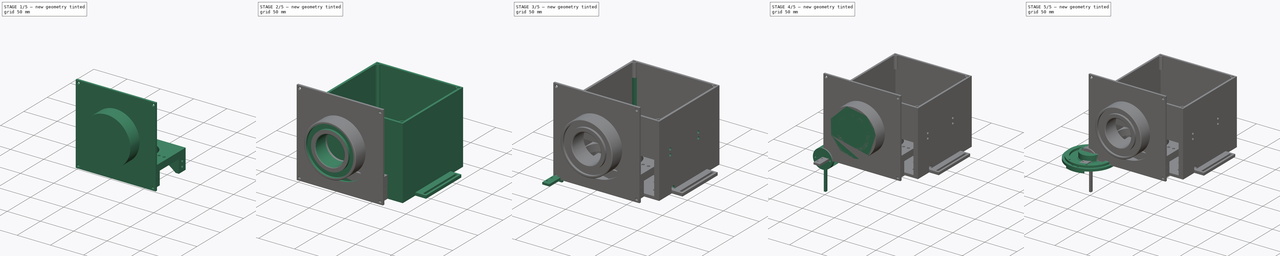
[diagram: build sequence overview — one tinted view per stage of 5, left to right]
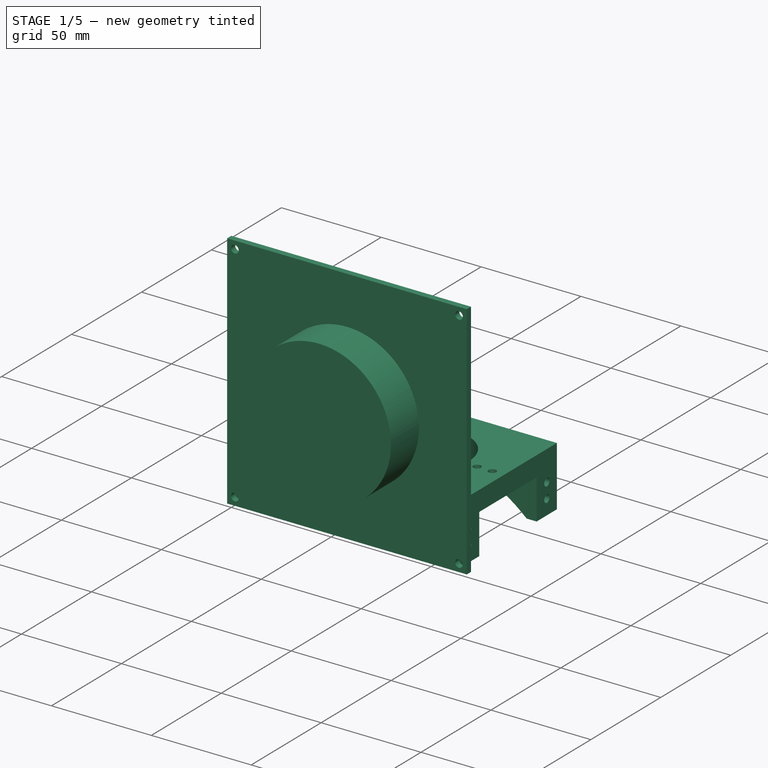
[diagram: stage 1 of 5 — iso view after this stage's code; geometry added in this stage tinted green]
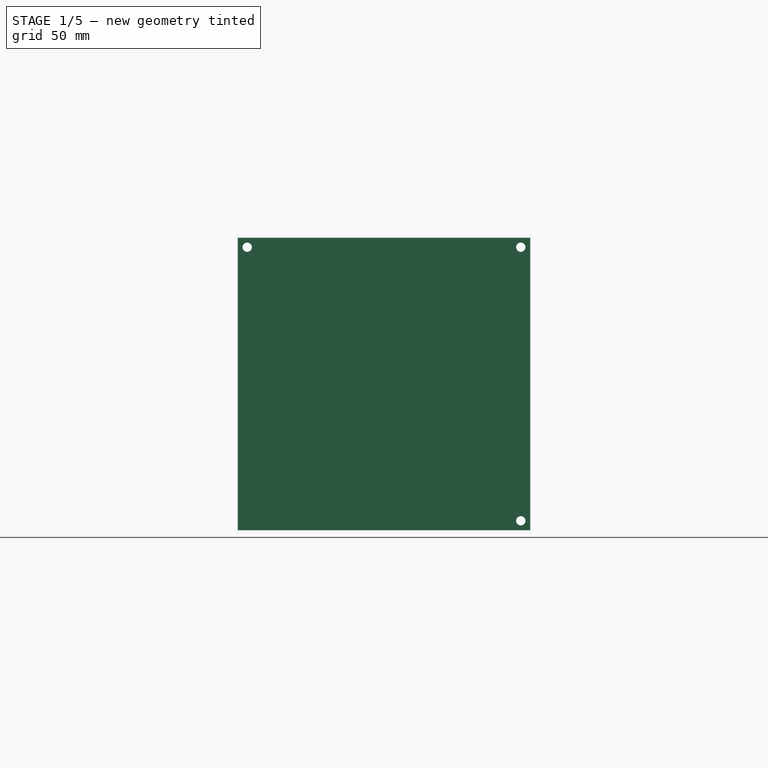
[diagram: stage 1 of 5 — front view after this stage's code; geometry added in this stage tinted green]
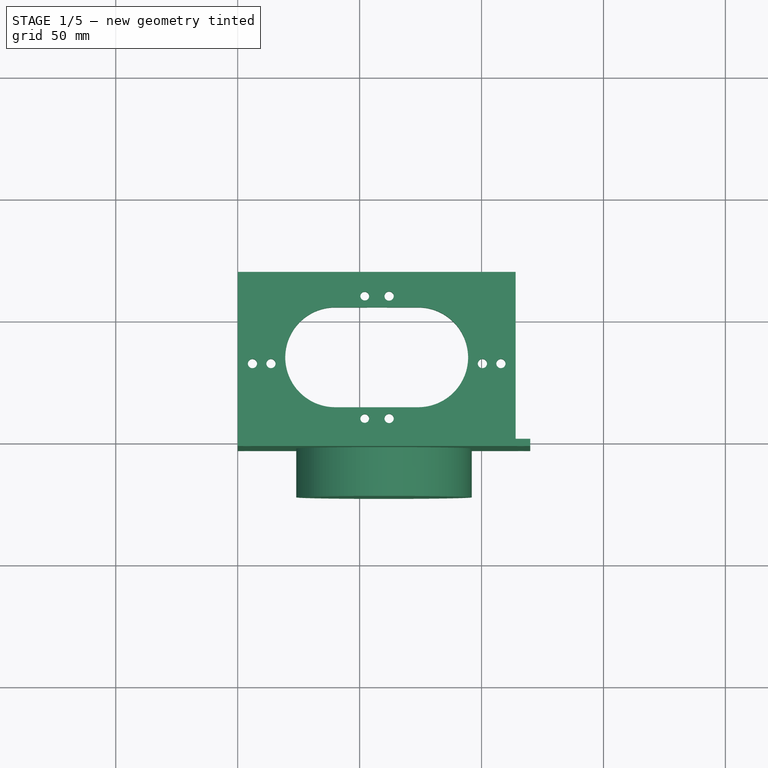
[diagram: stage 1 of 5 — top view after this stage's code; geometry added in this stage tinted green]
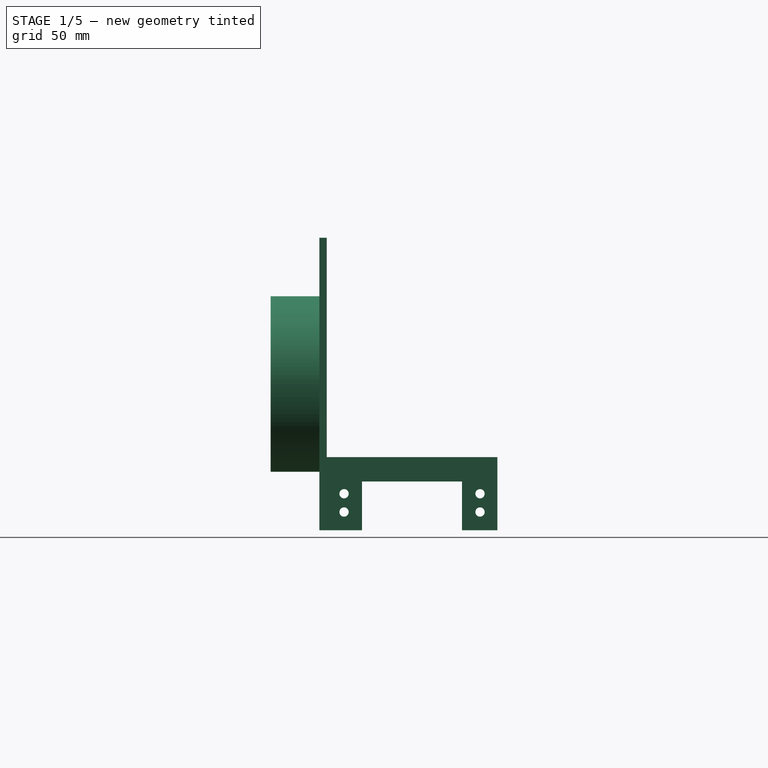
[diagram: stage 1 of 5 — right view after this stage's code; geometry added in this stage tinted green]
FCSTD DOCUMENT  (FreeCAD 0.18R16146 (Git))
Label: ResizedRotaryDisk
License: All rights reserved
LicenseURL: http://en.wikipedia.org/wiki/All_rights_reserved
objects: Sketcher::SketchObject×59, PartDesign::Pocket×43, PartDesign::Pad×15, PartDesign::Body×9, Part::Feature×7, PartDesign::Chamfer×4, App::DocumentObjectGroup×3, App::Part×2, PartDesign::Plane×2, PartDesign::FeatureBase×1, Part::Part2DObjectPython×1, PartDesign::AdditiveBox×1
note: 201 computed .brp shape members not serialized (recipe doc carries the construction recipe); baked Part::Feature solids carry a one-line shape summary decoded from their .brp

FEATURE [PartDesign::Body] Body013  label="BaseFloor"
  Group = -> [Sketch082,Pad021,Sketch001,Pocket052,Sketch002,Pocket001,Sketch003,Pocket002,Sketch004,Pad001,Sketch005,Pocket003,Sketch006,Pocket004]
  Origin = -> Origin028
  Placement = pos=(0,0,-48) rot=(0,0,1;0rad)
  Tip = -> Pocket004
FEATURE [Sketcher::SketchObject] Sketch085
  MapMode = 5
  Placement = pos=(0,0,0) rot=(1,0,0;1.5708rad)
  Support = -> [XZ_Plane032]
  sketch-geometry (4):
    g0: LineSegment StartX=0 StartY=0 StartZ=0 EndX=120 EndY=0 EndZ=0
    g1: LineSegment StartX=0 StartY=0 StartZ=0 EndX=0 EndY=120 EndZ=0
    g2: LineSegment StartX=0 StartY=120 StartZ=0 EndX=120 EndY=120 EndZ=0
    g3: LineSegment StartX=120 StartY=120 StartZ=0 EndX=120 EndY=0 EndZ=0
  constraints (11):
    c: Coincident(g0,g-1)
    c: PointOnObject(g0,g-1)
    c: Coincident(g1,g0)
    c: Vertical(g1)
    c: Coincident(g2,g1)
    c: Horizontal(g2)
    c: Coincident(g3,g2)
    c: Coincident(g3,g0)
    c: Vertical(g3)
    c: DistanceX(g0,g0) = 120
    c: DistanceY(g1,g1) = 120
FEATURE [PartDesign::Pad] Pad022
  Length = 3
  Length2 = 100
  Placement = pos=(0,0,0) rot=(1,0,0;1.5708rad)
  Profile = -> Sketch085
  Type = 0
FEATURE [Sketcher::SketchObject] Sketch087
  ExternalGeometry = -> [Pad022]
  MapMode = 5
  Placement = pos=(0,-3,-7e-16) rot=(1,0,0;1.5708rad)
  Support = -> [Pad022]
  sketch-geometry (4):
    g0: Circle CenterX=3.9 CenterY=3.9 CenterZ=0 NormalX=0 NormalY=0 NormalZ=1 AngleXU=0 Radius=1.9
    g1: Circle CenterX=116.1 CenterY=3.9 CenterZ=0 NormalX=0 NormalY=0 NormalZ=1 AngleXU=0 Radius=1.9
    g2: Circle CenterX=116.1 CenterY=116.1 CenterZ=0 NormalX=0 NormalY=0 NormalZ=1 AngleXU=0 Radius=1.9
    g3: Circle CenterX=3.9 CenterY=116.1 CenterZ=0 NormalX=0 NormalY=0 NormalZ=1 AngleXU=0 Radius=1.9
  constraints (12):
    c: Distance(g0,g-1) = 3.9
    c: Distance(g0,g-2) = 3.9
    c: Radius(g0) = 1.9
    c: Distance(g1,g-1) = 3.9
    c: Distance(g1,g-3) = 3.9
    c: Radius(g1) = 1.9
    c: Radius(g2) = 1.9
    c: Distance(g2,g-3) = 3.9
    c: Distance(g2,g-4) = 3.9
    c: Radius(g3) = 1.9
    c: Distance(g3,g-4) = 3.9
    c: Distance(g3,g-2) = 3.9
FEATURE [PartDesign::Pocket] Pocket055
  BaseFeature = -> Pad022
  Length = 5
  Length2 = 100
  Placement = pos=(0,0,0) rot=(1,0,0;1.5708rad)
  Profile = -> Sketch087
  Type = 1
FEATURE [Sketcher::SketchObject] Sketch086
  ExternalGeometry = -> [Pocket055]
  MapMode = 5
  Placement = pos=(0,-3,-7e-16) rot=(1,0,0;1.5708rad)
  Support = -> [Pocket055]
  sketch-geometry (3):
    g0: Circle CenterX=60 CenterY=60 CenterZ=0 NormalX=0 NormalY=0 NormalZ=1 AngleXU=0 Radius=20
    g1: LineSegment [constr] StartX=0 StartY=120 StartZ=0 EndX=120 EndY=0 EndZ=0
    g2: LineSegment [constr] StartX=0 StartY=0 StartZ=0 EndX=120 EndY=120 EndZ=0
  constraints (7):
    c: Radius(g0) = 20
    c: Coincident(g1,g-3)
    c: Coincident(g1,g-4)
    c: Coincident(g2,g-1)
    c: Coincident(g2,g-4)
    c: PointOnObject(g0,g1)
    c: PointOnObject(g0,g2)
FEATURE [PartDesign::Pocket] Pocket057
  BaseFeature = -> Pocket055
  Length = 5
  Length2 = 100
  Placement = pos=(0,0,0) rot=(1,0,0;1.5708rad)
  Profile = -> Sketch086
  Type = 1
FEATURE [Sketcher::SketchObject] Sketch089
  ExternalGeometry = -> [Pocket057]
  MapMode = 5
  Placement = pos=(0,-3,-7e-16) rot=(1,0,0;1.5708rad)
  Support = -> [Pocket057]
  sketch-geometry (1):
    g0: Circle CenterX=60 CenterY=60 CenterZ=0 NormalX=0 NormalY=0 NormalZ=1 AngleXU=0 Radius=36
  constraints (2):
    c: Coincident(g0,g-3)
    c: Radius(g0) = 36
FEATURE [PartDesign::Pad] Pad023
  BaseFeature = -> Pocket057
  Length = 20
  Length2 = 100
  Placement = pos=(0,0,0) rot=(1,0,0;1.5708rad)
  Profile = -> Sketch089
  Type = 0
FEATURE [PartDesign::Body] Body012  label="BaseRoof001"
  Group = -> [Sketch085,Pad022,Sketch087,Pocket055,Sketch086,Pocket057,Sketch089,Pad023,Sketch081,Pocket053,Sketch083,Sketch084,Pocket056,Chamfer005,Chamfer004,Sketch088,Pocket054]
  Origin = -> Origin031
  Placement = pos=(15,15,56) rot=(-1,0,0;1.5708rad)
  Tip = -> Pocket054
FEATURE [App::DocumentObjectGroup] Group004  label="Box"
  Group = -> [Body013,Body009,Body012]
FEATURE [Sketcher::SketchObject] Sketch090
  MapMode = 5
  Support = -> [XY_Plane032]
  sketch-geometry (4):
    g0: LineSegment StartX=0 StartY=0 StartZ=0 EndX=114 EndY=0 EndZ=0
    g1: LineSegment StartX=114 StartY=0 StartZ=0 EndX=114 EndY=70 EndZ=0
    g2: LineSegment StartX=114 StartY=70 StartZ=0 EndX=0 EndY=70 EndZ=0
    g3: LineSegment StartX=0 StartY=70 StartZ=0 EndX=0 EndY=0 EndZ=0
  constraints (12):
    c: PointOnObject(g0,g-1)
    c: Horizontal(g0)
    c: Coincident(g1,g0)
    c: Vertical(g1)
    c: PointOnObject(g2,g-2)
    c: Horizontal(g2)
    c: Coincident(g3,g2)
    c: Coincident(g3,g0)
    c: Vertical(g3)
    c: Distance(g0,g0) = 114
    c: Distance(g0,g2) = 70
    c: Coincident(g2,g1)
FEATURE [PartDesign::Pad] Pad024
  Length = 30
  Length2 = 100
  Profile = -> Sketch090
  Type = 0
FEATURE [Sketcher::SketchObject] Sketch091
  ExternalGeometry = -> [Pad024]
  MapMode = 5
  Placement = pos=(0,0,30) rot=(0,0,1;0rad)
  Support = -> [Pad024]
  sketch-geometry (8):
    g0: LineSegment [constr] StartX=40 StartY=55.5 StartZ=0 EndX=40 EndY=14.5 EndZ=0
    g1: LineSegment StartX=40 StartY=14.5 StartZ=0 EndX=74 EndY=14.5 EndZ=0
    g2: LineSegment [constr] StartX=74 StartY=14.5 StartZ=0 EndX=74 EndY=55.5 EndZ=0
    g3: LineSegment StartX=74 StartY=55.5 StartZ=0 EndX=40 EndY=55.5 EndZ=0
    g4: GeomPoint X=74 Y=35 Z=0
    g5: ArcOfCircle CenterX=74 CenterY=35 CenterZ=0 NormalX=0 NormalY=0 NormalZ=1 AngleXU=0 Radius=20.5 StartAngle=4.71239 EndAngle=7.85398
    g6: GeomPoint X=40 Y=35 Z=0
    g7: ArcOfCircle CenterX=40 CenterY=35 CenterZ=0 NormalX=0 NormalY=0 NormalZ=1 AngleXU=0 Radius=20.5 StartAngle=1.5708 EndAngle=4.71239
  constraints (20):
    c: Vertical(g0)
    c: Coincident(g1,g0)
    c: Horizontal(g1)
    c: Coincident(g2,g1)
    c: Vertical(g2)
    c: Coincident(g3,g2)
    c: Coincident(g3,g0)
    c: Horizontal(g3)
    c: Distance(g0,g1) = 34
    c: Distance(g0,g0) = 41
    c: Distance(g1,g-3) = 40
    c: Distance(g0,g-5) = 14.5
    c: PointOnObject(g4,g2)
    c: Coincident(g5,g4)
    c: Coincident(g5,g3)
    c: Coincident(g5,g1)
    c: PointOnObject(g6,g0)
    c: Coincident(g7,g6)
    c: Coincident(g7,g3)
    c: Coincident(g7,g1)
FEATURE [PartDesign::Pocket] Pocket058
  BaseFeature = -> Pad024
  Length = 5
  Length2 = 100
  Profile = -> Sketch091
  Type = 1
FEATURE [Sketcher::SketchObject] Sketch069
  ExternalGeometry = -> [Pocket058]
  MapMode = 5
  Placement = pos=(0,0,0) rot=(1,0,0;1.5708rad)
  Support = -> [Pocket058]
  sketch-geometry (5):
    g0: LineSegment [constr] StartX=0 StartY=20 StartZ=0 EndX=114 EndY=20 EndZ=0
    g1: LineSegment StartX=5 StartY=-5.5635e-12 StartZ=0 EndX=109 EndY=-5.5707e-12 EndZ=0
    g2: LineSegment [constr] StartX=0 StartY=-5.5635e-12 StartZ=0 EndX=5 EndY=-5.5635e-12 EndZ=0
    g3: LineSegment [constr] StartX=109 StartY=-5.5707e-12 StartZ=0 EndX=114 EndY=-5.5707e-12 EndZ=0
    g4: ArcOfCircle CenterX=57 CenterY=-57.6 CenterZ=0 NormalX=0 NormalY=0 NormalZ=1 AngleXU=0 Radius=77.6 StartAngle=0.836449 EndAngle=2.30514
  constraints (15):
    c: PointOnObject(g0,g-3)
    c: PointOnObject(g0,g-5)
    c: Horizontal(g0)
    c: Coincident(g2,g-1)
    c: Coincident(g2,g1)
    c: Horizontal(g2)
    c: Coincident(g3,g1)
    c: Coincident(g3,g-5)
    c: Horizontal(g3)
    c: Distance(g3) = 5
    c: Distance(g2) = 5
    c: Coincident(g4,g1)
    c: Coincident(g4,g1)
    c: Tangent(g4,g0)
    c: Distance(g0,g-6) = 10
FEATURE [PartDesign::Pocket] Pocket059
  BaseFeature = -> Pocket058
  Length = 5
  Length2 = 100
  Profile = -> Sketch069
  Type = 1
FEATURE [Sketcher::SketchObject] Sketch092
  ExternalGeometry = -> [Pocket059]
  MapMode = 5
  Placement = pos=(0,0,0) rot=(0.57735,-0.57735,-0.57735;2.0944rad)
  Support = -> [Pocket059]
  sketch-geometry (4):
    g0: LineSegment StartX=-55.5 StartY=0 StartZ=0 EndX=-55.5 EndY=20 EndZ=0
    g1: LineSegment StartX=-55.5 StartY=20 StartZ=0 EndX=-14.5 EndY=20 EndZ=0
    g2: LineSegment StartX=-14.5 StartY=20 StartZ=0 EndX=-14.5 EndY=0 EndZ=0
    g3: LineSegment StartX=-14.5 StartY=0 StartZ=0 EndX=-55.5 EndY=0 EndZ=0
FEATURE [PartDesign::Pocket] Pocket060
  BaseFeature = -> Pocket059
  Length = 5
  Length2 = 100
  Profile = -> Sketch092
  Type = 1
FEATURE [Sketcher::SketchObject] Sketch093
  ExternalGeometry = -> [Pocket060]
  MapMode = 5
  Placement = pos=(0,0,30) rot=(0,0,1;0rad)
  Support = -> [Pocket060]
  sketch-geometry (4):
    g0: Circle CenterX=52.1 CenterY=60.1 CenterZ=0 NormalX=0 NormalY=0 NormalZ=1 AngleXU=0 Radius=1.8
    g1: Circle CenterX=62.1 CenterY=60.1 CenterZ=0 NormalX=0 NormalY=0 NormalZ=1 AngleXU=0 Radius=1.9
    g2: Circle CenterX=52.1 CenterY=9.9 CenterZ=0 NormalX=0 NormalY=0 NormalZ=1 AngleXU=0 Radius=1.8
    g3: Circle CenterX=62.1 CenterY=9.9 CenterZ=0 NormalX=0 NormalY=0 NormalZ=1 AngleXU=0 Radius=1.9
  constraints (12):
    c: Radius(g3) = 1.9
    c: Radius(g2) = 1.8
    c: Radius(g0) = 1.8
    c: Radius(g1) = 1.9
    c: Distance(g3,g-5) = 51.9
    c: Distance(g3,g-4) = 4.6
    c: Distance(g2,g-6) = 52.1
    c: Distance(g2,g-4) = 4.6
    c: Distance(g1,g-3) = 4.6
    c: Distance(g0,g-3) = 4.6
    c: Distance(g0,g-6) = 52.1
    c: Distance(g1,g-5) = 51.9
FEATURE [PartDesign::Pocket] Pocket061
  BaseFeature = -> Pocket060
  Length = 5
  Length2 = 100
  Profile = -> Sketch093
  Type = 1
FEATURE [Sketcher::SketchObject] Sketch094
  ExternalGeometry = -> [Pocket061]
  MapMode = 5
  Placement = pos=(114,0,0) rot=(0.57735,0.57735,0.57735;2.0944rad)
  Support = -> [Pocket061]
  sketch-geometry (4):
    g0: Circle CenterX=7.12 CenterY=15 CenterZ=0 NormalX=0 NormalY=0 NormalZ=1 AngleXU=0 Radius=1.9
    g1: Circle CenterX=7.12 CenterY=7.5 CenterZ=0 NormalX=0 NormalY=0 NormalZ=1 AngleXU=0 Radius=1.9
    g2: Circle CenterX=62.88 CenterY=15 CenterZ=0 NormalX=0 NormalY=0 NormalZ=1 AngleXU=0 Radius=1.9
    g3: Circle CenterX=62.88 CenterY=7.5 CenterZ=0 NormalX=0 NormalY=0 NormalZ=1 AngleXU=0 Radius=1.9
  constraints (4):
    c: Radius(g1) = 1.9
    c: Radius(g0) = 1.9
    c: Radius(g3) = 1.9
    c: Radius(g2) = 1.9
FEATURE [PartDesign::Pocket] Pocket062
  BaseFeature = -> Pocket061
  Length = 5
  Length2 = 100
  Profile = -> Sketch094
  Type = 1
FEATURE [PartDesign::Plane] DatumPlane002
  AttachmentOffset = pos=(0,0,-20) rot=(0,0,1;0rad)
  Length = 91.3137
  MapMode = 5
  Placement = pos=(94,0,0) rot=(0.57735,0.57735,0.57735;2.0944rad)
  ResizeMode = 0
  Support = -> [Pocket062]
  Width = 51.3137
FEATURE [Sketcher::SketchObject] Sketch095
  ExternalGeometry = -> [Pocket062]
  MapMode = 5
  Placement = pos=(94,0,0) rot=(0.57735,0.57735,0.57735;2.0944rad)
  Support = -> [DatumPlane002]
  sketch-geometry (2):
    g0: Circle CenterX=7.12 CenterY=15 CenterZ=0 NormalX=0 NormalY=0 NormalZ=1 AngleXU=0 Radius=4.5
    g1: Circle CenterX=62.88 CenterY=15 CenterZ=0 NormalX=0 NormalY=0 NormalZ=1 AngleXU=0 Radius=4.5
  constraints (2):
    c: Radius(g0) = 4.5
    c: Radius(g1) = 4.5
FEATURE [PartDesign::Pocket] Pocket063
  BaseFeature = -> Pocket062
  Length = 29
  Length2 = 100
  Profile = -> Sketch095
  Type = 0
FEATURE [PartDesign::Plane] DatumPlane003
  AttachmentOffset = pos=(0,0,-20) rot=(0,0,1;0rad)
  Length = 91.3137
  MapMode = 5
  Placement = pos=(20,0,0) rot=(0.57735,-0.57735,-0.57735;2.0944rad)
  ResizeMode = 0
  Support = -> [Pocket063]
  Width = 51.3137
FEATURE [Sketcher::SketchObject] Sketch096
  MapMode = 5
  Placement = pos=(20,0,0) rot=(0.57735,-0.57735,-0.57735;2.0944rad)
  Support = -> [DatumPlane003]
  sketch-geometry (2):
    g0: Circle CenterX=-62.88 CenterY=15 CenterZ=0 NormalX=0 NormalY=0 NormalZ=1 AngleXU=0 Radius=4.5
    g1: Circle CenterX=-7.12 CenterY=15 CenterZ=0 NormalX=0 NormalY=0 NormalZ=1 AngleXU=0 Radius=4.5
FEATURE [PartDesign::Pocket] Pocket064
  BaseFeature = -> Pocket063
  Length = 29
  Length2 = 100
  Profile = -> Sketch096
  Type = 0
FEATURE [Sketcher::SketchObject] Sketch097
  ExternalGeometry = -> [Pocket064]
  MapMode = 5
  Placement = pos=(0,0,30) rot=(0,0,1;0rad)
  Support = -> [Pocket064]
  sketch-geometry (4):
    g0: Circle CenterX=100.35 CenterY=32.44 CenterZ=0 NormalX=0 NormalY=0 NormalZ=1 AngleXU=0 Radius=1.9
    g1: Circle CenterX=107.95 CenterY=32.44 CenterZ=0 NormalX=0 NormalY=0 NormalZ=1 AngleXU=0 Radius=1.9
    g2: Circle CenterX=6.05 CenterY=32.44 CenterZ=0 NormalX=0 NormalY=0 NormalZ=1 AngleXU=0 Radius=1.9
    g3: Circle CenterX=13.65 CenterY=32.44 CenterZ=0 NormalX=0 NormalY=0 NormalZ=1 AngleXU=0 Radius=1.9
  constraints (6):
    c: Distance(g1,g0) = 7.6
    c: Radius(g1) = 1.9
    c: Radius(g0) = 1.9
    c: Radius(g2) = 1.9
    c: Radius(g3) = 1.9
    c: Distance(g2,g3) = 7.6
FEATURE [PartDesign::Pocket] Pocket065
  BaseFeature = -> Pocket064
  Length = 5
  Length2 = 100
  Profile = -> Sketch097
  Type = 1
FEATURE [PartDesign::Body] Body010  label="MotorSupport"
  Group = -> [Sketch090,Pad024,Sketch091,Pocket058,Sketch069,Pocket059,Sketch092,Pocket060,Sketch093,Pocket061,Sketch094,Pocket062,DatumPlane002,Sketch095,Pocket063,DatumPlane003,Sketch096,Pocket064,Sketch097,Pocket065]
  Origin = -> Origin032
  Placement = pos=(18,30,-2) rot=(0,0,1;0rad)
  Tip = -> Pocket065
FEATURE [App::DocumentObjectGroup] Group  label="BaseMotorSupport"
  Group = -> [Body004,S3006_S148_U301PAA,Body010]
FEATURE [App::DocumentObjectGroup] Group003  label="Base"
  Group = -> [Group,Group004]
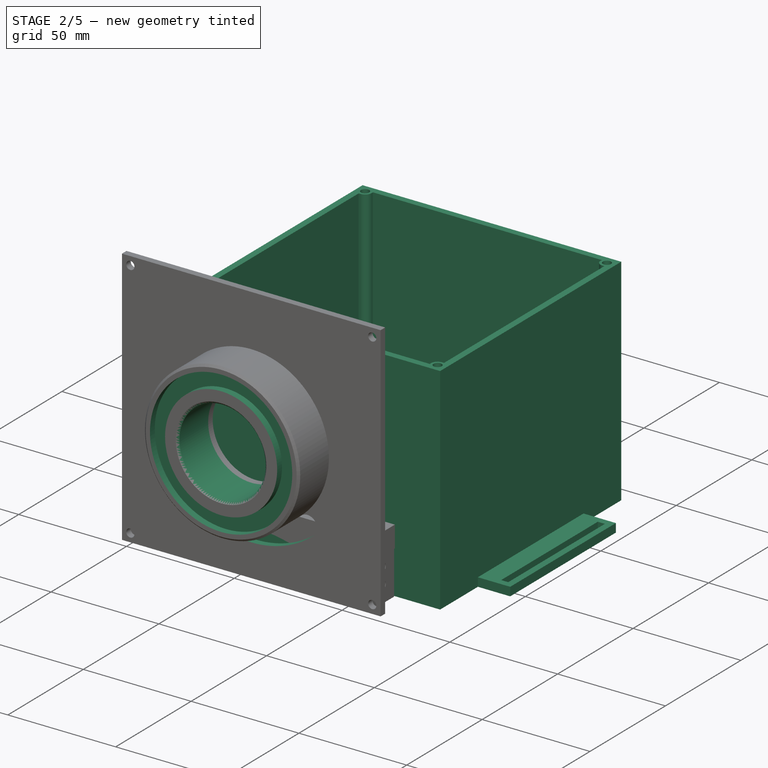
[diagram: stage 2 of 5 — iso view after this stage's code; geometry added in this stage tinted green]
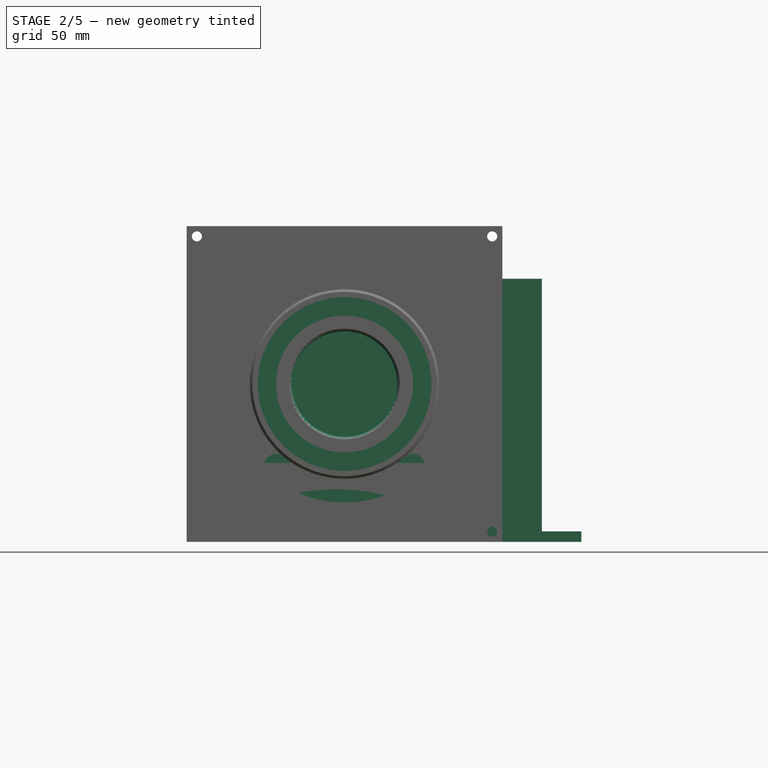
[diagram: stage 2 of 5 — front view after this stage's code; geometry added in this stage tinted green]
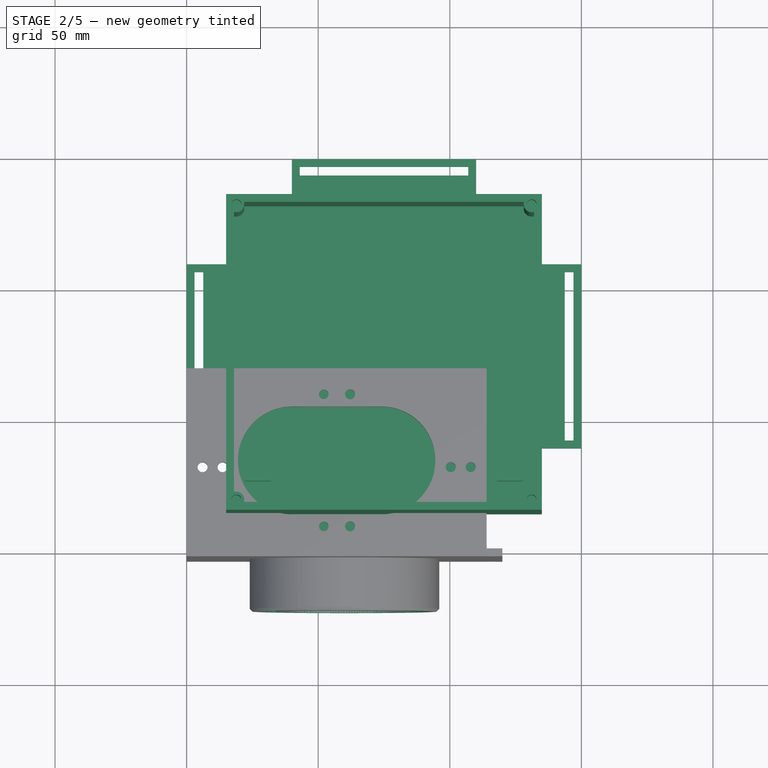
[diagram: stage 2 of 5 — top view after this stage's code; geometry added in this stage tinted green]
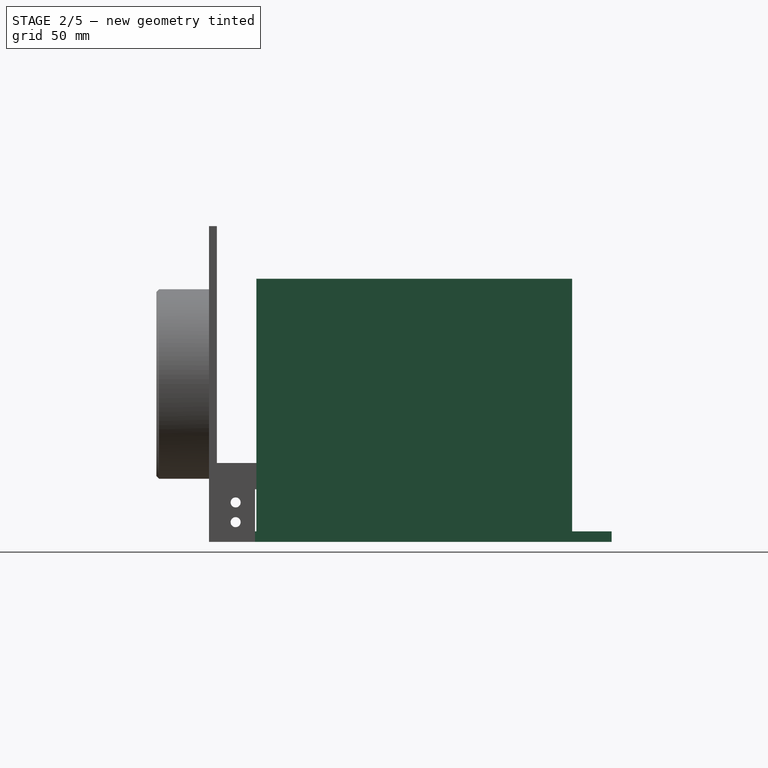
[diagram: stage 2 of 5 — right view after this stage's code; geometry added in this stage tinted green]
FEATURE [PartDesign::Body] Body008  label="LowerAxisTowerPiece"
  Group = -> [Pad020,InvoluteGear002,Pocket050,Sketch080,Pocket051,Sketch079,Pad019]
  Origin = -> Origin027
  Placement = pos=(75.1,74.9,43.3) rot=(-0.57735,-0.57735,0.57735;2.0944rad)
  Tip = -> Pad019
FEATURE [Part::Feature] Part__Feature120  label="b1"
  Placement = pos=(12.4,19.44,-0.6) rot=(0,0,1;0rad)
  shape: bbox 3.247 x 3.247 x 24.91 mm, 35 faces (baked)
FEATURE [Sketcher::SketchObject] Sketch031
  MapMode = 5
  Placement = pos=(0,0,0) rot=(1,0,0;1.5708rad)
  Support = -> [XZ_Plane020]
  sketch-geometry (4):
    g0: LineSegment StartX=0 StartY=0 StartZ=0 EndX=10 EndY=0 EndZ=0
    g1: LineSegment StartX=0 StartY=0 StartZ=0 EndX=0 EndY=3 EndZ=0
    g2: LineSegment StartX=0 StartY=3 StartZ=0 EndX=10 EndY=3 EndZ=0
    g3: LineSegment StartX=10 StartY=3 StartZ=0 EndX=10 EndY=0 EndZ=0
  constraints (11):
    c: Coincident(g0,g-1)
    c: Horizontal(g0)
    c: Coincident(g1,g0)
    c: PointOnObject(g1,g-2)
    c: Coincident(g2,g1)
    c: Horizontal(g2)
    c: Coincident(g3,g2)
    c: Vertical(g3)
    c: Coincident(g0,g3)
    c: Distance(g0,g0) = 10
    c: Distance(g1,g0) = 3
FEATURE [Sketcher::SketchObject] Sketch007
  MapMode = 5
  Support = -> [XY_Plane029]
  sketch-geometry (4):
    g0: LineSegment StartX=15 StartY=135 StartZ=0 EndX=135 EndY=135 EndZ=0
    g1: LineSegment StartX=15 StartY=135 StartZ=0 EndX=15 EndY=15 EndZ=0
    g2: LineSegment StartX=15 StartY=15 StartZ=0 EndX=135 EndY=15 EndZ=0
    g3: LineSegment StartX=135 StartY=15 StartZ=0 EndX=135 EndY=135 EndZ=0
  constraints (12):
    c: Horizontal(g0)
    c: Vertical(g1)
    c: Coincident(g2,g1)
    c: Horizontal(g2)
    c: Coincident(g3,g2)
    c: Coincident(g3,g0)
    c: Vertical(g3)
    c: Distance(g0) = 120
    c: Distance(g1) = 120
    c: Distance(g1,g-1) = 15
    c: Distance(g1,g-2) = 15
    c: Coincident(g0,g1)
FEATURE [PartDesign::Pad] Pad002
  Length = 100
  Length2 = 100
  Profile = -> Sketch007
  Type = 0
FEATURE [Part::Feature] Part__Feature119  label="b2"
  Placement = pos=(-2.6,19.44,-0.6) rot=(0,0,1;0rad)
  shape: bbox 3.247 x 3.247 x 24.91 mm, 35 faces (baked)
FEATURE [Part::Feature] Part__Feature118  label="b3"
  Placement = pos=(-2.6,-16.06,-0.6) rot=(0,0,1;0rad)
  shape: bbox 3.247 x 3.247 x 24.91 mm, 35 faces (baked)
FEATURE [Sketcher::SketchObject] Sketch008
  ExternalGeometry = -> [Pad002]
  MapMode = 5
  Placement = pos=(0,0,0) rot=(1,0,0;3.14159rad)
  Support = -> [Pad002]
  sketch-geometry (16):
    g0: LineSegment StartX=21.9 StartY=-18 StartZ=0 EndX=128.1 EndY=-18 EndZ=0
    g1: LineSegment StartX=18 StartY=-21.9 StartZ=0 EndX=18 EndY=-128.1 EndZ=0
    g2: LineSegment StartX=132 StartY=-21.9 StartZ=0 EndX=132 EndY=-128.1 EndZ=0
    g3: LineSegment StartX=21.9 StartY=-132 StartZ=0 EndX=128.1 EndY=-132 EndZ=0
    g4: LineSegment StartX=21.9 StartY=-18 StartZ=0 EndX=21.9 EndY=-18.9 EndZ=0
    g5: LineSegment StartX=18 StartY=-21.9 StartZ=0 EndX=18.9 EndY=-21.9 EndZ=0
    g6: ArcOfCircle CenterX=18.9 CenterY=-18.9 CenterZ=0 NormalX=0 NormalY=0 NormalZ=1 AngleXU=0 Radius=3 StartAngle=4.71239 EndAngle=6.28319
    g7: LineSegment StartX=128.1 StartY=-18 StartZ=0 EndX=128.1 EndY=-18.9 EndZ=0
    g8: LineSegment StartX=132 StartY=-21.9 StartZ=0 EndX=131.1 EndY=-21.9 EndZ=0
    g9: ArcOfCircle CenterX=131.1 CenterY=-18.9 CenterZ=0 NormalX=0 NormalY=0 NormalZ=1 AngleXU=0 Radius=3 StartAngle=3.14159 EndAngle=4.71239
    g10: LineSegment StartX=132 StartY=-128.1 StartZ=0 EndX=131.1 EndY=-128.1 EndZ=0
    g11: LineSegment StartX=128.1 StartY=-132 StartZ=0 EndX=128.1 EndY=-131.1 EndZ=0
    g12: ArcOfCircle CenterX=131.1 CenterY=-131.1 CenterZ=0 NormalX=0 NormalY=0 NormalZ=1 AngleXU=0 Radius=3 StartAngle=1.5708 EndAngle=3.14159
    g13: LineSegment StartX=18 StartY=-128.1 StartZ=0 EndX=18.9 EndY=-128.1 EndZ=0
    g14: LineSegment StartX=21.9 StartY=-132 StartZ=0 EndX=21.9 EndY=-131.1 EndZ=0
    g15: ArcOfCircle CenterX=18.9 CenterY=-131.1 CenterZ=0 NormalX=0 NormalY=0 NormalZ=1 AngleXU=0 Radius=3 StartAngle=-9e-16 EndAngle=1.5708
  constraints (52):
    c: Horizontal(g0)
    c: Vertical(g1)
    c: Vertical(g2)
    c: Horizontal(g3)
    c: Distance(g0) = 106.2
    c: Distance(g1) = 106.2
    c: Distance(g3) = 106.2
    c: Distance(g2) = 106.2
    c: Distance(g0,g-6) = 6.9
    c: Distance(g2,g-3) = 6.9
    c: Distance(g1,g-5) = 6.9
    c: Distance(g3,g-6) = 6.9
    c: Distance(g3,g-5) = 3
    c: Distance(g2,g-6) = 3
    c: Distance(g1,g-4) = 3
    c: Distance(g0,g-3) = 3
    c: Coincident(g4,g0)
    c: Vertical(g4)
    c: Coincident(g5,g1)
    c: Horizontal(g5)
    c: Distance(g4) = 0.9
    c: Distance(g5) = 0.9
    c: Coincident(g6,g4)
    c: Coincident(g6,g5)
    c: Radius(g6) = 3
    c: Coincident(g7,g0)
    c: Vertical(g7)
    c: Coincident(g8,g2)
    c: Horizontal(g8)
    c: Distance(g7) = 0.9
    c: Distance(g8) = 0.9
    c: Coincident(g9,g7)
    c: Coincident(g9,g8)
    c: Radius(g9) = 3
    c: Coincident(g10,g2)
    c: Horizontal(g10)
    c: Coincident(g11,g3)
    c: Vertical(g11)
    c: Distance(g10) = 0.9
    c: Distance(g11) = 0.9
    c: Coincident(g12,g11)
    c: Coincident(g12,g10)
    c: Radius(g12) = 3
    c: Coincident(g13,g1)
    c: Horizontal(g13)
    c: Coincident(g14,g3)
    c: Vertical(g14)
    c: Distance(g13) = 0.9
    c: Distance(g14) = 0.9
    c: Coincident(g15,g13)
    c: Coincident(g15,g14)
    c: Radius(g15) = 3
FEATURE [Part::Feature] Part__Feature122  label="Screw_3x8"
  Placement = pos=(62.7475,7.25547,-24.6) rot=(0,0,1;2.41757rad)
  shape: bbox 5.6 x 5.6 x 10.4 mm, 89 faces (baked)
FEATURE [Part::Feature] Part__Feature117  label="b4"
  Placement = pos=(12.4,-16.06,-0.6) rot=(0,0,1;0rad)
  shape: bbox 3.247 x 3.247 x 24.91 mm, 35 faces (baked)
FEATURE [App::Part] SCREW_1_7x24  label="SCREW-1.7x24"
  Group = -> [Part__Feature117,Part__Feature118,Part__Feature119,Part__Feature120]
  Origin = -> Origin010
  Placement = pos=(0,0,-2.6) rot=(0,0,1;0rad)
FEATURE [PartDesign::Pocket] Pocket005
  BaseFeature = -> Pad002
  Length = 5
  Length2 = 100
  Profile = -> Sketch008
  Type = 1
FEATURE [PartDesign::Body] Body004  label="EndRacePart"
  Group = -> [Sketch031,Pad005,Sketch032,Pocket025,Sketch033,Box002,Pocket026]
  Origin = -> Origin019
  Placement = pos=(123.595,57.4756,30.9872) rot=(-0.57735,-0.57735,0.57735;2.0944rad)
  Tip = -> Pocket026
FEATURE [PartDesign::Pocket] Pocket006
  BaseFeature = -> Pocket005
  Length = 16
  Length2 = 100
  Profile = -> Sketch009
  Type = 0
FEATURE [PartDesign::Body] Body009  label="BaseWalls"
  Group = -> [Sketch007,Pad002,Sketch008,Pocket005,Sketch009,Pocket006,Sketch010,Pocket007,Sketch011,Pocket008,Sketch012,Pocket009,Sketch013,Pocket010,Sketch014,Pocket011,Sketch015,Pocket012]
  Origin = -> Origin029
  Placement = pos=(0,0,-44) rot=(0,0,1;0rad)
  Tip = -> Pocket012
FEATURE [Part::Feature] Part__Feature121  label="Case"
  shape: bbox 20.02 x 68.3 x 42.1 mm, 433 faces (baked)
FEATURE [App::Part] S3006_S148_U301PAA  label="DemoBaseMotor"
  Group = -> [Part__Feature122,SCREW_1_7x24,Part__Feature121]
  Origin = -> Origin011
  Placement = pos=(85,85.2,26.55) rot=(0,0,-1;3.14159rad)
FEATURE [Sketcher::SketchObject] Sketch082
  MapMode = 5
  Support = -> [XY_Plane028]
  sketch-geometry (4):
    g0: LineSegment StartX=0 StartY=0 StartZ=0 EndX=0 EndY=150 EndZ=0
    g1: LineSegment StartX=0 StartY=150 StartZ=0 EndX=150 EndY=150 EndZ=0
    g2: LineSegment StartX=150 StartY=150 StartZ=0 EndX=150 EndY=0 EndZ=0
    g3: LineSegment StartX=150 StartY=0 StartZ=0 EndX=0 EndY=0 EndZ=0
  constraints (11):
    c: Coincident(g0,g-1)
    c: PointOnObject(g0,g-2)
    c: Coincident(g1,g0)
    c: Horizontal(g1)
    c: Coincident(g2,g1)
    c: PointOnObject(g2,g-1)
    c: Vertical(g2)
    c: Coincident(g3,g2)
    c: Coincident(g3,g0)
    c: Distance(g3) = 150
    c: Distance(g0) = 150
FEATURE [PartDesign::Pad] Pad021
  Length = 4
  Length2 = 100
  Profile = -> Sketch082
  Type = 0
FEATURE [Sketcher::SketchObject] Sketch001
  ExternalGeometry = -> [Pad021]
  MapMode = 5
  Placement = pos=(0,0,4) rot=(0,0,1;0rad)
  Support = -> [Pad021]
  sketch-geometry (28):
    g0: LineSegment StartX=0 StartY=110 StartZ=0 EndX=15 EndY=110 EndZ=0
    g1: LineSegment StartX=15 StartY=110 StartZ=0 EndX=15 EndY=135 EndZ=0
    g2: LineSegment StartX=15 StartY=135 StartZ=0 EndX=40 EndY=135 EndZ=0
    g3: LineSegment StartX=40 StartY=135 StartZ=0 EndX=40 EndY=150 EndZ=0
    g4: LineSegment [constr] StartX=0 StartY=110 StartZ=0 EndX=0 EndY=40 EndZ=0
    g5: LineSegment StartX=0 StartY=40 StartZ=0 EndX=15 EndY=40 EndZ=0
    g6: LineSegment StartX=15 StartY=40 StartZ=0 EndX=15 EndY=15 EndZ=0
    g7: LineSegment StartX=15 StartY=15 StartZ=0 EndX=40 EndY=15 EndZ=0
    g8: LineSegment StartX=40 StartY=15 StartZ=0 EndX=40 EndY=0 EndZ=0
    g9: LineSegment [constr] StartX=40 StartY=150 StartZ=0 EndX=110 EndY=150 EndZ=0
    g10: LineSegment StartX=110 StartY=150 StartZ=0 EndX=110 EndY=135 EndZ=0
    g11: LineSegment StartX=110 StartY=135 StartZ=0 EndX=135 EndY=135 EndZ=0
    g12: LineSegment StartX=135 StartY=135 StartZ=0 EndX=135 EndY=110 EndZ=0
    g13: LineSegment StartX=135 StartY=110 StartZ=0 EndX=150 EndY=110 EndZ=0
    g14: LineSegment [constr] StartX=150 StartY=110 StartZ=0 EndX=150 EndY=40 EndZ=0
    g15: LineSegment StartX=150 StartY=40 StartZ=0 EndX=135 EndY=40 EndZ=0
    g16: LineSegment StartX=135 StartY=40 StartZ=0 EndX=135 EndY=15 EndZ=0
    g17: LineSegment StartX=135 StartY=15 StartZ=0 EndX=110 EndY=15 EndZ=0
    g18: LineSegment StartX=110 StartY=15 StartZ=0 EndX=110 EndY=0 EndZ=0
    g19: LineSegment [constr] StartX=110 StartY=0 StartZ=0 EndX=40 EndY=0 EndZ=0
    g20: LineSegment StartX=0 StartY=110 StartZ=0 EndX=0 EndY=150 EndZ=0
    g21: LineSegment StartX=0 StartY=150 StartZ=0 EndX=40 EndY=150 EndZ=0
    g22: LineSegment StartX=0 StartY=40 StartZ=0 EndX=0 EndY=0 EndZ=0
    g23: LineSegment StartX=0 StartY=0 StartZ=0 EndX=40 EndY=0 EndZ=0
    g24: LineSegment StartX=110 StartY=0 StartZ=0 EndX=150 EndY=0 EndZ=0
    g25: LineSegment StartX=150 StartY=0 StartZ=0 EndX=150 EndY=40 EndZ=0
    g26: LineSegment StartX=150 StartY=110 StartZ=0 EndX=150 EndY=150 EndZ=0
    g27: LineSegment StartX=150 StartY=150 StartZ=0 EndX=110 EndY=150 EndZ=0
  constraints (76):
    c: PointOnObject(g0,g-4)
    c: Horizontal(g0)
    c: Coincident(g1,g0)
    c: Vertical(g1)
    c: Coincident(g2,g1)
    c: Horizontal(g2)
    c: Coincident(g3,g2)
    c: PointOnObject(g3,g-3)
    c: Vertical(g3)
    c: Distance(g0) = 15
    c: Distance(g1) = 25
    c: Distance(g2) = 25
    c: Distance(g3) = 15
    c: Coincident(g4,g0)
    c: PointOnObject(g4,g-4)
    c: Coincident(g5,g4)
    c: Horizontal(g5)
    c: Coincident(g6,g5)
    c: Vertical(g6)
    c: Coincident(g7,g6)
    c: Horizontal(g7)
    c: Coincident(g8,g7)
    c: PointOnObject(g8,g-6)
    c: Vertical(g8)
    c: Distance(g4) = 70
    c: Distance(g5) = 15
    c: Distance(g7) = 25
    c: Distance(g6) = 25
    c: Coincident(g9,g3)
    c: PointOnObject(g9,g-3)
    c: Coincident(g10,g9)
    c: Vertical(g10)
    c: Coincident(g11,g10)
    c: Horizontal(g11)
    c: Coincident(g12,g11)
    c: Vertical(g12)
    c: Coincident(g13,g12)
    c: PointOnObject(g13,g-5)
    c: Horizontal(g13)
    c: Coincident(g14,g13)
    c: PointOnObject(g14,g-5)
    c: Coincident(g15,g14)
    c: Horizontal(g15)
    c: Coincident(g16,g15)
    c: Vertical(g16)
    c: Coincident(g17,g16)
    c: Horizontal(g17)
    c: Coincident(g18,g17)
    c: PointOnObject(g18,g-6)
    c: Vertical(g18)
    c: Coincident(g19,g18)
    c: Coincident(g19,g8)
    c: Distance(g19) = 70
    c: Distance(g9) = 70
    c: Distance(g10) = 15
    c: Distance(g13) = 15
    c: Distance(g15) = 15
    c: Distance(g18) = 15
    c: Distance(g14) = 70
    c: Distance(g12) = 25
    c: Coincident(g20,g0)
    c: Coincident(g20,g-4)
    c: Coincident(g21,g20)
    c: Coincident(g22,g4)
    c: Coincident(g22,g-1)
    c: Coincident(g23,g22)
    c: Coincident(g24,g18)
    c: Coincident(g24,g-6)
    c: Coincident(g25,g24)
    c: Coincident(g25,g14)
    c: Coincident(g26,g13)
    c: Coincident(g26,g-5)
    c: Coincident(g27,g26)
    c: Coincident(g27,g9)
    c: Coincident(g23,g8)
    c: Coincident(g21,g3)
FEATURE [PartDesign::Pocket] Pocket052
  BaseFeature = -> Pad021
  Length = 5
  Length2 = 100
  Profile = -> Sketch001
  Type = 1
FEATURE [Sketcher::SketchObject] Sketch002
  ExternalGeometry = -> [Pocket052]
  MapMode = 5
  Placement = pos=(0,0,4) rot=(0,0,1;0rad)
  Support = -> [Pocket052]
  sketch-geometry (20):
    g0: LineSegment StartX=3 StartY=107 StartZ=0 EndX=6.3 EndY=107 EndZ=0
    g1: LineSegment StartX=6.3 StartY=107 StartZ=0 EndX=6.3 EndY=43 EndZ=0
    g2: LineSegment StartX=6.3 StartY=43 StartZ=0 EndX=3 EndY=43 EndZ=0
    g3: LineSegment StartX=3 StartY=43 StartZ=0 EndX=3 EndY=107 EndZ=0
    g4: LineSegment StartX=43 StartY=147 StartZ=0 EndX=107 EndY=147 EndZ=0
    g5: LineSegment StartX=107 StartY=147 StartZ=0 EndX=107 EndY=143.7 EndZ=0
    g6: LineSegment StartX=107 StartY=143.7 StartZ=0 EndX=43 EndY=143.7 EndZ=0
    g7: LineSegment StartX=43 StartY=143.7 StartZ=0 EndX=43 EndY=147 EndZ=0
    g8: LineSegment StartX=143.7 StartY=107 StartZ=0 EndX=147 EndY=107 EndZ=0
    g9: LineSegment StartX=147 StartY=107 StartZ=0 EndX=147 EndY=43 EndZ=0
    g10: LineSegment StartX=147 StartY=43 StartZ=0 EndX=143.7 EndY=43 EndZ=0
    g11: LineSegment StartX=143.7 StartY=43 StartZ=0 EndX=143.7 EndY=107 EndZ=0
    g12: LineSegment StartX=43 StartY=6.3 StartZ=0 EndX=107 EndY=6.3 EndZ=0
    g13: LineSegment StartX=107 StartY=6.3 StartZ=0 EndX=107 EndY=3 EndZ=0
    g14: LineSegment StartX=107 StartY=3 StartZ=0 EndX=43 EndY=3 EndZ=0
    g15: LineSegment StartX=43 StartY=3 StartZ=0 EndX=43 EndY=6.3 EndZ=0
    g16: Circle CenterX=18.9 CenterY=131.1 CenterZ=0 NormalX=0 NormalY=0 NormalZ=1 AngleXU=0 Radius=1.9
    g17: Circle CenterX=131.1 CenterY=131.1 CenterZ=0 NormalX=0 NormalY=0 NormalZ=1 AngleXU=0 Radius=1.9
    g18: Circle CenterX=131.1 CenterY=18.9 CenterZ=0 NormalX=0 NormalY=0 NormalZ=1 AngleXU=0 Radius=1.9
    g19: Circle CenterX=18.9 CenterY=18.9 CenterZ=0 NormalX=0 NormalY=0 NormalZ=1 AngleXU=0 Radius=1.9
  constraints (60):
    c: Coincident(g0,g1)
    c: Coincident(g1,g2)
    c: Coincident(g2,g3)
    c: Coincident(g3,g0)
    c: Horizontal(g0)
    c: Horizontal(g2)
    c: Vertical(g1)
    c: Vertical(g3)
    c: Coincident(g4,g5)
    c: Coincident(g5,g6)
    c: Coincident(g6,g7)
    c: Coincident(g7,g4)
    c: Horizontal(g4)
    c: Horizontal(g6)
    c: Vertical(g5)
    c: Vertical(g7)
    c: Coincident(g8,g9)
    c: Coincident(g9,g10)
    c: Coincident(g10,g11)
    c: Coincident(g11,g8)
    c: Horizontal(g8)
    c: Horizontal(g10)
    c: Vertical(g9)
    c: Vertical(g11)
    c: Coincident(g12,g13)
    c: Coincident(g13,g14)
    c: Coincident(g14,g15)
    c: Coincident(g15,g12)
    c: Horizontal(g12)
    c: Horizontal(g14)
    c: Vertical(g13)
    c: Vertical(g15)
    c: Distance(g3) = 64
    c: DistanceY(g0,g-4) = 3
    c: DistanceX(g-4,g0) = 3
    c: DistanceX(g0,g0) = 3.3
    c: DistanceY(g5,g5) = 3.3
    c: DistanceY(g4,g-6) = 3
    c: DistanceX(g-6,g4) = 3
    c: Distance(g6) = 64
    c: Distance(g11) = 64
    c: Distance(g8) = 3.3
    c: DistanceY(g8,g-8) = 3
    c: DistanceX(g8,g-8) = 3
    c: Distance(g12) = 64
    c: Distance(g15) = 3.3
    c: DistanceX(g13,g-10) = 3
    c: DistanceY(g-10,g13) = 3
    c: Radius(g19) = 1.9
    c: Radius(g18) = 1.9
    c: Radius(g16) = 1.9
    c: Radius(g17) = 1.9
    c: Distance(g16,g-11) = 3.9
    c: Distance(g16,g-12) = 3.9
    c: Distance(g19,g-18) = 3.9
    c: Distance(g19,g-17) = 3.9
    c: Distance(g18,g-16) = 3.9
    c: Distance(g18,g-15) = 3.9
    c: Distance(g17,g-13) = 3.9
    c: Distance(g17,g-14) = 3.9
FEATURE [PartDesign::Pocket] Pocket001
  BaseFeature = -> Pocket052
  Length = 5
  Length2 = 100
  Profile = -> Sketch002
  Type = 0
FEATURE [Sketcher::SketchObject] Sketch003
  ExternalGeometry = -> [Pocket001]
  MapMode = 5
  Placement = pos=(0,0,0) rot=(1,0,0;3.14159rad)
  Support = -> [Pocket001]
  sketch-geometry (4):
    g0: Circle CenterX=18.9 CenterY=-131.1 CenterZ=0 NormalX=0 NormalY=0 NormalZ=1 AngleXU=0 Radius=2.95
    g1: Circle CenterX=18.9 CenterY=-18.9 CenterZ=0 NormalX=0 NormalY=0 NormalZ=1 AngleXU=0 Radius=2.95
    g2: Circle CenterX=131.1 CenterY=-18.9 CenterZ=0 NormalX=0 NormalY=0 NormalZ=1 AngleXU=0 Radius=2.95
    g3: Circle CenterX=131.1 CenterY=-131.1 CenterZ=0 NormalX=0 NormalY=0 NormalZ=1 AngleXU=0 Radius=2.95
  constraints (8):
    c: Coincident(g3,g-5)
    c: Coincident(g0,g-6)
    c: Coincident(g1,g-3)
    c: Coincident(g2,g-4)
    c: Radius(g2) = 2.95
    c: Radius(g1) = 2.95
    c: Radius(g0) = 2.95
    c: Radius(g3) = 2.95
FEATURE [PartDesign::Pocket] Pocket002
  BaseFeature = -> Pocket001
  Length = 3
  Length2 = 100
  Profile = -> Sketch003
  Type = 0
FEATURE [Sketcher::SketchObject] Sketch004
  ExternalGeometry = -> [Pocket002]
  MapMode = 5
  Placement = pos=(0,0,4) rot=(0,0,1;0rad)
  Support = -> [Pocket002]
  sketch-geometry (8):
    g0: LineSegment StartX=22.1 StartY=122.5 StartZ=0 EndX=32.1 EndY=122.5 EndZ=0
    g1: LineSegment StartX=32.1 StartY=122.5 StartZ=0 EndX=32.1 EndY=27.5 EndZ=0
    g2: LineSegment StartX=32.1 StartY=27.5 StartZ=0 EndX=22.1 EndY=27.5 EndZ=0
    g3: LineSegment StartX=22.1 StartY=27.5 StartZ=0 EndX=22.1 EndY=122.5 EndZ=0
    g4: LineSegment StartX=117.9 StartY=122.5 StartZ=0 EndX=127.9 EndY=122.5 EndZ=0
    g5: LineSegment StartX=127.9 StartY=122.5 StartZ=0 EndX=127.9 EndY=27.5 EndZ=0
    g6: LineSegment StartX=127.9 StartY=27.5 StartZ=0 EndX=117.9 EndY=27.5 EndZ=0
    g7: LineSegment StartX=117.9 StartY=27.5 StartZ=0 EndX=117.9 EndY=122.5 EndZ=0
  constraints (24):
    c: Coincident(g0,g1)
    c: Coincident(g1,g2)
    c: Coincident(g2,g3)
    c: Coincident(g3,g0)
    c: Horizontal(g0)
    c: Horizontal(g2)
    c: Vertical(g1)
    c: Vertical(g3)
    c: Coincident(g4,g5)
    c: Coincident(g5,g6)
    c: Coincident(g6,g7)
    c: Coincident(g7,g4)
    c: Horizontal(g4)
    c: Horizontal(g6)
    c: Vertical(g5)
    c: Vertical(g7)
    c: Distance(g6) = 10
    c: Distance(g5) = 95
    c: Distance(g2) = 10
    c: Distance(g1) = 95
    c: Distance(g-4,g3) = 7.1
    c: Distance(g-3,g0) = 12.5
    c: Distance(g-6,g5) = 7.1
    c: Distance(g4,g-5) = 12.5
FEATURE [PartDesign::Pad] Pad001
  BaseFeature = -> Pocket002
  Length = 11
  Length2 = 100
  Profile = -> Sketch004
  Type = 0
FEATURE [Sketcher::SketchObject] Sketch081
  ExternalGeometry = -> [Pad023]
  MapMode = 5
  Placement = pos=(0,-3,-7e-16) rot=(-1,0,0;1.5708rad)
  Support = -> [Pad023]
  sketch-geometry (1):
    g0: Circle CenterX=60 CenterY=-60 CenterZ=0 NormalX=0 NormalY=0 NormalZ=1 AngleXU=0 Radius=20
  constraints (2):
    c: Coincident(g0,g-3)
    c: Radius(g0) = 20
FEATURE [PartDesign::Pocket] Pocket053
  BaseFeature = -> Pad023
  Length = 5
  Length2 = 100
  Placement = pos=(0,0,0) rot=(1,0,0;1.5708rad)
  Profile = -> Sketch081
  Type = 1
FEATURE [Sketcher::SketchObject] Sketch083
  MapMode = 5
  Placement = pos=(0,-23,-5.3e-15) rot=(1,0,0;1.5708rad)
  Support = -> [Pocket053]
FEATURE [Sketcher::SketchObject] Sketch084
  ExternalGeometry = -> [Pocket053]
  MapMode = 5
  Placement = pos=(0,-23,-5.3e-15) rot=(1,0,0;1.5708rad)
  Support = -> [Pocket053]
  sketch-geometry (2):
    g0: Circle CenterX=60 CenterY=60 CenterZ=0 NormalX=0 NormalY=0 NormalZ=1 AngleXU=0 Radius=33
    g1: Circle CenterX=60 CenterY=60 CenterZ=0 NormalX=0 NormalY=0 NormalZ=1 AngleXU=0 Radius=26
  constraints (4):
    c: Coincident(g0,g-4)
    c: Radius(g0) = 33
    c: Coincident(g1,g0)
    c: Radius(g1) = 26
FEATURE [PartDesign::Pocket] Pocket056
  BaseFeature = -> Pocket053
  Length = 3.2
  Length2 = 100
  Placement = pos=(0,0,0) rot=(1,0,0;1.5708rad)
  Profile = -> Sketch084
  Type = 0
FEATURE [PartDesign::Chamfer] Chamfer005
  Base = -> Pocket056 [Edge32]
  BaseFeature = -> Pocket056
  Placement = pos=(0,0,0) rot=(1,0,0;1.5708rad)
  Size = 1
FEATURE [PartDesign::Chamfer] Chamfer004
  Base = -> Chamfer005 [Edge40]
  BaseFeature = -> Chamfer005
  Placement = pos=(0,0,0) rot=(1,0,0;1.5708rad)
  Size = 1
FEATURE [Sketcher::SketchObject] Sketch088
  ExternalGeometry = -> [Chamfer004]
  MapMode = 5
  Placement = pos=(0,-3,-7e-16) rot=(1,0,0;1.5708rad)
  Support = -> [Chamfer004]
  sketch-geometry (13):
    g0: LineSegment [constr] StartX=60 StartY=60 StartZ=0 EndX=36.8596 EndY=32.4224 EndZ=0
    g1: LineSegment [constr] StartX=60 StartY=60 StartZ=0 EndX=83.1404 EndY=32.4224 EndZ=0
    g2: LineSegment [constr] StartX=60 StartY=60 StartZ=0 EndX=60 EndY=15 EndZ=0
    g3: ArcOfCircle CenterX=60 CenterY=60 CenterZ=0 NormalX=0 NormalY=0 NormalZ=1 AngleXU=0 Radius=36 StartAngle=4.01426 EndAngle=5.41052
    g4: GeomPoint X=60 Y=24 Z=0
    g5: Circle [constr] CenterX=60 CenterY=60 CenterZ=0 NormalX=0 NormalY=0 NormalZ=1 AngleXU=0 Radius=45
    g6: LineSegment [constr] StartX=60 StartY=60 StartZ=0 EndX=31.0746 EndY=25.528 EndZ=0
    g7: LineSegment [constr] StartX=60 StartY=60 StartZ=0 EndX=88.9255 EndY=25.528 EndZ=0
    g8: ArcOfCircle CenterX=60 CenterY=60 CenterZ=0 NormalX=0 NormalY=0 NormalZ=1 AngleXU=0 Radius=45 StartAngle=4.01426 EndAngle=5.41052
    g9: GeomPoint X=33.9671 Y=28.9752 Z=0
    g10: ArcOfCircle CenterX=33.9671 CenterY=28.9752 CenterZ=0 NormalX=0 NormalY=0 NormalZ=1 AngleXU=0 Radius=4.5 StartAngle=0.872668 EndAngle=4.01426
    g11: GeomPoint X=86.0329 Y=28.9752 Z=0
    g12: ArcOfCircle CenterX=86.0329 CenterY=28.9752 CenterZ=0 NormalX=0 NormalY=0 NormalZ=1 AngleXU=0 Radius=4.5 StartAngle=5.41052 EndAngle=8.55212
  constraints (31):
    c: Coincident(g0,g-3)
    c: PointOnObject(g0,g-3)
    c: Coincident(g1,g0)
    c: Angle(g0,g1) = 1.39626
    c: Vertical(g2)
    c: Angle(g2,g1) = 0.698132
    c: Coincident(g3,g0)
    c: Coincident(g3,g0)
    c: Coincident(g3,g1)
    c: Coincident(g2,g3)
    c: PointOnObject(g4,g2)
    c: PointOnObject(g4,g3)
    c: Coincident(g5,g3)
    c: Radius(g5) = 45
    c: Coincident(g6,g3)
    c: PointOnObject(g6,g5)
    c: Coincident(g7,g3)
    c: Angle(g6,g7) = 1.39626
    c: Coincident(g8,g3)
    c: Coincident(g8,g6)
    c: Coincident(g8,g7)
    c: PointOnObject(g9,g6)
    c: Distance(g9,g3) = 4.5
    c: Coincident(g10,g9)
    c: Coincident(g10,g8)
    c: Coincident(g10,g3)
    c: PointOnObject(g11,g7)
    c: Coincident(g12,g11)
    c: Coincident(g12,g8)
    c: Coincident(g12,g3)
    c: PointOnObject(g2,g8)
FEATURE [PartDesign::Pocket] Pocket054
  BaseFeature = -> Chamfer004
  Length = 5
  Length2 = 100
  Placement = pos=(0,0,0) rot=(1,0,0;1.5708rad)
  Profile = -> Sketch088
  Type = 1
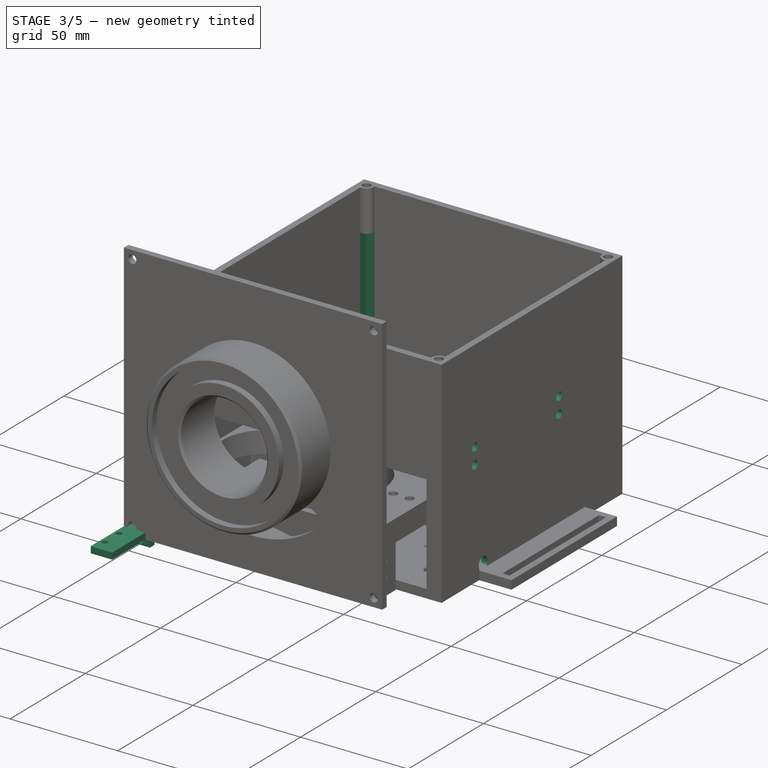
[diagram: stage 3 of 5 — iso view after this stage's code; geometry added in this stage tinted green]
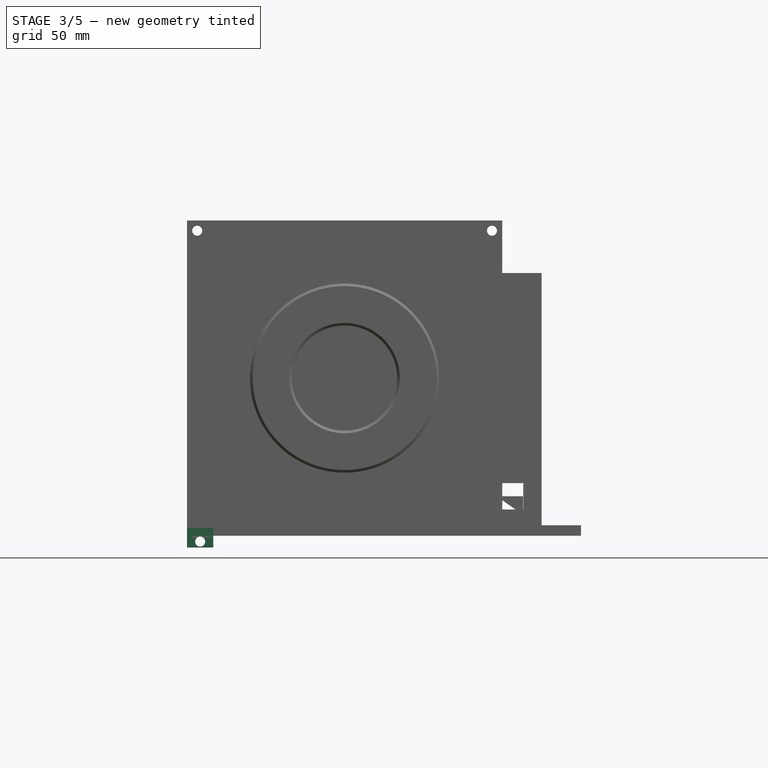
[diagram: stage 3 of 5 — front view after this stage's code; geometry added in this stage tinted green]
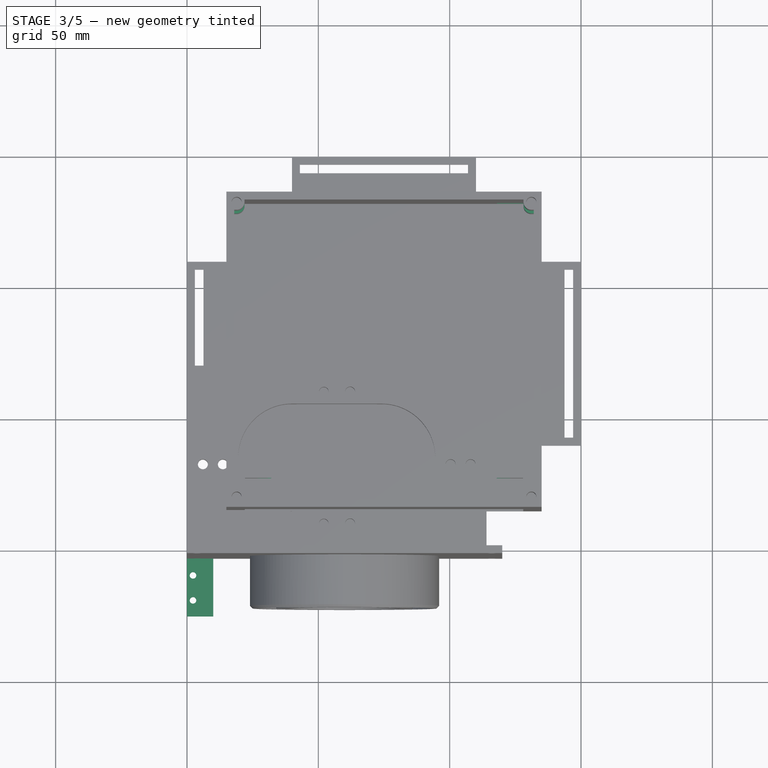
[diagram: stage 3 of 5 — top view after this stage's code; geometry added in this stage tinted green]
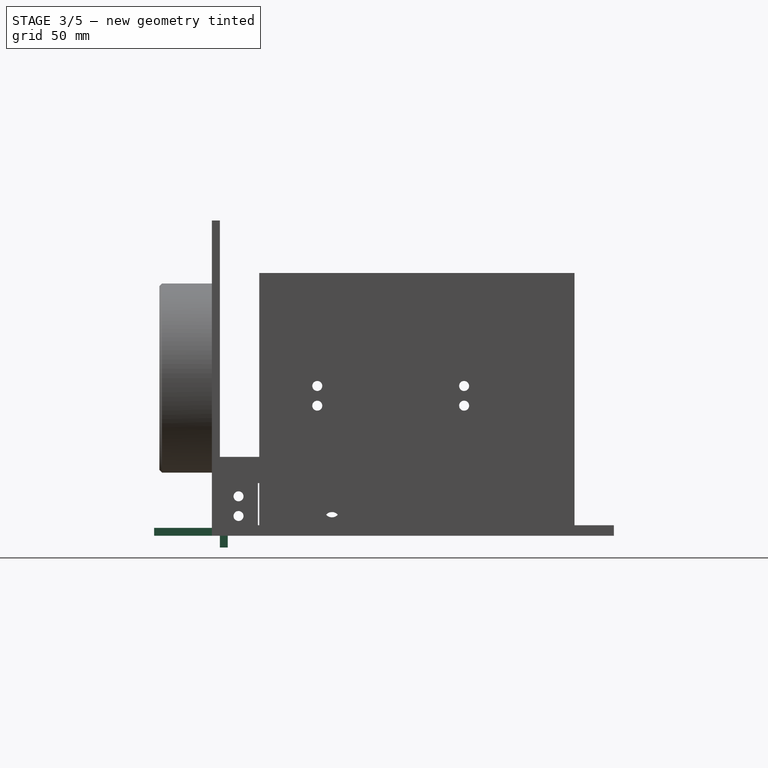
[diagram: stage 3 of 5 — right view after this stage's code; geometry added in this stage tinted green]
FEATURE [Sketcher::SketchObject] Sketch009
  ExternalGeometry = -> [Pocket005]
  MapMode = 5
  Placement = pos=(0,0,100) rot=(0,0,1;0rad)
  Support = -> [Pocket005]
  sketch-geometry (4):
    g0: Circle CenterX=18.9 CenterY=18.9 CenterZ=0 NormalX=0 NormalY=0 NormalZ=1 AngleXU=0 Radius=1.9
    g1: Circle CenterX=131.1 CenterY=18.9 CenterZ=0 NormalX=0 NormalY=0 NormalZ=1 AngleXU=0 Radius=1.9
    g2: Circle CenterX=131.1 CenterY=131.1 CenterZ=0 NormalX=0 NormalY=0 NormalZ=1 AngleXU=0 Radius=1.9
    g3: Circle CenterX=18.9 CenterY=131.1 CenterZ=0 NormalX=0 NormalY=0 NormalZ=1 AngleXU=0 Radius=1.9
  constraints (8):
    c: Coincident(g3,g-7)
    c: Radius(g3) = 1.9
    c: Coincident(g2,g-8)
    c: Radius(g2) = 1.9
    c: Coincident(g-9,g1)
    c: Radius(g1) = 1.9
    c: Coincident(g0,g-10)
    c: Radius(g0) = 1.9
FEATURE [PartDesign::Pad] Pad005
  Length = 25
  Length2 = 100
  Placement = pos=(0,0,0) rot=(1,0,0;1.5708rad)
  Profile = -> Sketch031
  Type = 0
FEATURE [Sketcher::SketchObject] Sketch032
  MapMode = 5
  Placement = pos=(0,1.3e-15,3) rot=(0,0,1;3.14159rad)
  Support = -> [Pad005]
  sketch-geometry (2):
    g0: Circle CenterX=-2.3 CenterY=18.9 CenterZ=0 NormalX=0 NormalY=0 NormalZ=1 AngleXU=0 Radius=1.25
    g1: Circle CenterX=-2.3 CenterY=9.4 CenterZ=0 NormalX=0 NormalY=0 NormalZ=1 AngleXU=0 Radius=1.25
  constraints (6):
    c: Radius(g0) = 1.25
    c: Radius(g1) = 1.25
    c: Distance(g1,g-2) = 2.3
    c: Distance(g0,g-2) = 2.3
    c: Distance(g0,g-1) = 18.9
    c: Distance(g1,g-1) = 9.4
FEATURE [PartDesign::Pocket] Pocket025
  BaseFeature = -> Pad005
  Length = 5
  Length2 = 100
  Placement = pos=(0,0,0) rot=(1,0,0;1.5708rad)
  Profile = -> Sketch032
  Type = 0
FEATURE [Sketcher::SketchObject] Sketch033
  ExternalGeometry = -> [Pocket025]
  MapMode = 5
  Placement = pos=(0,0,0) rot=(1,0,0;1.5708rad)
  Support = -> [XZ_Plane020]
  sketch-geometry (8):
    g0: LineSegment [constr] StartX=0 StartY=0 StartZ=0 EndX=0 EndY=-4.5 EndZ=0
    g1: LineSegment [constr] StartX=0 StartY=-4.5 StartZ=0 EndX=10 EndY=-4.5 EndZ=0
    g2: LineSegment [constr] StartX=10 StartY=-4.5 StartZ=0 EndX=10 EndY=0 EndZ=0
    g3: Circle CenterX=5 CenterY=-2.25 CenterZ=0 NormalX=0 NormalY=0 NormalZ=1 AngleXU=0 Radius=1.9
    g4: LineSegment [constr] StartX=0 StartY=3 StartZ=0 EndX=0 EndY=7.5 EndZ=0
    g5: LineSegment [constr] StartX=0 StartY=7.5 StartZ=0 EndX=10 EndY=7.5 EndZ=0
    g6: LineSegment [constr] StartX=10 StartY=7.5 StartZ=0 EndX=10 EndY=3 EndZ=0
    g7: Circle CenterX=5 CenterY=5.25 CenterZ=0 NormalX=0 NormalY=0 NormalZ=1 AngleXU=0 Radius=1.9
  constraints (23):
    c: PointOnObject(g0,g-2)
    c: Coincident(g1,g0)
    c: Horizontal(g1)
    c: Coincident(g2,g1)
    c: Coincident(g2,g-4)
    c: Vertical(g2)
    c: DistanceY(g0,g0) = 4.5
    c: Coincident(g0,g-1)
    c: Radius(g3) = 1.9
    c: Distance(g3,g0) = 5
    c: DistanceX(g1,g1) = 10
    c: Distance(g3,g1) = 2.25
    c: Coincident(g4,g-3)
    c: PointOnObject(g4,g-2)
    c: Coincident(g5,g4)
    c: Horizontal(g5)
    c: Coincident(g6,g5)
    c: Coincident(g6,g-4)
    c: Vertical(g6)
    c: DistanceY(g4,g4) = 4.5
    c: Radius(g7) = 1.9
    c: Distance(g7,g4) = 5
    c: Distance(g7,g5) = 2.25
FEATURE [PartDesign::AdditiveBox] Box002
  AttacherType = Attacher::AttachEngine3D
  AttachmentOffset = pos=(0,-7.5,0) rot=(0,0,1;0rad)
  BaseFeature = -> Pocket025
  Height = 3
  Length = 10
  MapMode = 5
  Placement = pos=(0,1.7e-15,7.5) rot=(-1,0,0;1.5708rad)
  Support = -> [Pocket025]
  Width = 12
FEATURE [PartDesign::Pocket] Pocket026
  BaseFeature = -> Box002
  Length = 5
  Length2 = 100
  Placement = pos=(0,3e-15,7.5) rot=(-1,0,0;1.5708rad)
  Profile = -> Sketch033
  Type = 1
FEATURE [Sketcher::SketchObject] Sketch010
  ExternalGeometry = -> [Pocket006]
  MapMode = 5
  Placement = pos=(18,0,0) rot=(0.57735,0.57735,0.57735;2.0944rad)
  Support = -> [Pocket006]
  sketch-geometry (8):
    g0: LineSegment StartX=21.9 StartY=19 StartZ=0 EndX=21.9 EndY=81 EndZ=0
    g1: LineSegment StartX=21.9 StartY=81 StartZ=0 EndX=18 EndY=81 EndZ=0
    g2: LineSegment StartX=18 StartY=81 StartZ=0 EndX=18 EndY=19 EndZ=0
    g3: LineSegment StartX=18 StartY=19 StartZ=0 EndX=21.9 EndY=19 EndZ=0
    g4: LineSegment StartX=128.1 StartY=81 StartZ=0 EndX=132 EndY=81 EndZ=0
    g5: LineSegment StartX=128.1 StartY=81 StartZ=0 EndX=128.1 EndY=19 EndZ=0
    g6: LineSegment StartX=128.1 StartY=19 StartZ=0 EndX=132 EndY=19 EndZ=0
    g7: LineSegment StartX=132 StartY=19 StartZ=0 EndX=132 EndY=81 EndZ=0
  constraints (24):
    c: PointOnObject(g0,g-3)
    c: PointOnObject(g0,g-3)
    c: Distance(g-3,g0) = 19
    c: Distance(g0,g-3) = 19
    c: Coincident(g1,g0)
    c: Horizontal(g1)
    c: Coincident(g2,g1)
    c: Vertical(g2)
    c: Coincident(g3,g2)
    c: Horizontal(g3)
    c: Coincident(g3,g0)
    c: Distance(g2,g-6) = 3
    c: PointOnObject(g4,g-4)
    c: Horizontal(g4)
    c: Coincident(g5,g4)
    c: PointOnObject(g5,g-4)
    c: Coincident(g6,g5)
    c: Horizontal(g6)
    c: Coincident(g7,g6)
    c: Coincident(g7,g4)
    c: Vertical(g7)
    c: Distance(g4,g-5) = 3
    c: Distance(g4,g-4) = 19
    c: Distance(g5,g-4) = 19
FEATURE [PartDesign::Pocket] Pocket007
  BaseFeature = -> Pocket006
  Length = 114
  Length2 = 100
  Profile = -> Sketch010
  Reversed = true
  Type = 0
FEATURE [Sketcher::SketchObject] Sketch011
  ExternalGeometry = -> [Pocket007]
  MapMode = 5
  Placement = pos=(0,0,0) rot=(1,0,0;3.14159rad)
  Support = -> [Pocket007]
  sketch-geometry (4):
    g0: Circle CenterX=18.9 CenterY=-131.1 CenterZ=0 NormalX=0 NormalY=0 NormalZ=1 AngleXU=0 Radius=1.9
    g1: Circle CenterX=18.9 CenterY=-18.9 CenterZ=0 NormalX=0 NormalY=0 NormalZ=1 AngleXU=0 Radius=1.9
    g2: Circle CenterX=131.1 CenterY=-18.9 CenterZ=0 NormalX=0 NormalY=0 NormalZ=1 AngleXU=0 Radius=1.9
    g3: Circle CenterX=131.1 CenterY=-131.1 CenterZ=0 NormalX=0 NormalY=0 NormalZ=1 AngleXU=0 Radius=1.9
  constraints (8):
    c: Coincident(g0,g-6)
    c: Radius(g0) = 1.9
    c: Coincident(g1,g-3)
    c: Radius(g1) = 1.9
    c: Coincident(g2,g-4)
    c: Radius(g2) = 1.9
    c: Coincident(g3,g-5)
    c: Radius(g3) = 1.9
FEATURE [PartDesign::Pocket] Pocket008
  BaseFeature = -> Pocket007
  Length = 16
  Length2 = 100
  Profile = -> Sketch011
  Type = 0
FEATURE [Sketcher::SketchObject] Sketch012
  ExternalGeometry = -> [Pocket008]
  MapMode = 5
  Placement = pos=(15,0,0) rot=(0.57735,-0.57735,-0.57735;2.0944rad)
  Support = -> [Pocket008]
  sketch-geometry (4):
    g0: Circle CenterX=-37.1 CenterY=57 CenterZ=0 NormalX=0 NormalY=0 NormalZ=1 AngleXU=0 Radius=1.9
    g1: Circle CenterX=-37.1 CenterY=49.5 CenterZ=0 NormalX=0 NormalY=0 NormalZ=1 AngleXU=0 Radius=1.9
    g2: Circle CenterX=-93 CenterY=57 CenterZ=0 NormalX=0 NormalY=0 NormalZ=1 AngleXU=0 Radius=1.9
    g3: Circle CenterX=-93 CenterY=49.5 CenterZ=0 NormalX=0 NormalY=0 NormalZ=1 AngleXU=0 Radius=1.9
  constraints (12):
    c: Radius(g0) = 1.9
    c: Distance(g0,g-4) = 22.1
    c: Distance(g0,g-5) = 57
    c: Radius(g1) = 1.9
    c: Distance(g1,g-4) = 22.1
    c: Distance(g0,g1) = 7.5
    c: Radius(g2) = 1.9
    c: Distance(g2,g-5) = 57
    c: Distance(g2,g0) = 55.9
    c: Distance(g3,g2) = 7.5
    c: Radius(g3) = 1.9
    c: Distance(g3,g1) = 55.9
FEATURE [PartDesign::Pocket] Pocket009
  BaseFeature = -> Pocket008
  Length = 5
  Length2 = 100
  Profile = -> Sketch012
  Type = 1
FEATURE [Sketcher::SketchObject] Sketch013
  ExternalGeometry = -> [Pocket009]
  MapMode = 5
  Placement = pos=(0,15,0) rot=(1,0,0;1.5708rad)
  Support = -> [Pocket009]
  sketch-geometry (4):
    g0: LineSegment StartX=22 StartY=50 StartZ=0 EndX=128 EndY=50 EndZ=0
    g1: LineSegment StartX=128 StartY=50 StartZ=0 EndX=128 EndY=0 EndZ=0
    g2: LineSegment StartX=128 StartY=0 StartZ=0 EndX=22 EndY=0 EndZ=0
    g3: LineSegment StartX=22 StartY=0 StartZ=0 EndX=22 EndY=50 EndZ=0
  constraints (12):
    c: Coincident(g0,g1)
    c: Coincident(g1,g2)
    c: Coincident(g2,g3)
    c: Coincident(g3,g0)
    c: Horizontal(g0)
    c: Horizontal(g2)
    c: Vertical(g1)
    c: Vertical(g3)
    c: Distance(g0,g0) = 106
    c: Distance(g2,g-3) = 7
    c: DistanceY(g-3,g2) = 0
    c: Distance(g0,g2) = 50
FEATURE [PartDesign::Pocket] Pocket010
  BaseFeature = -> Pocket009
  Length = 3
  Length2 = 100
  Profile = -> Sketch013
  Type = 0
FEATURE [Sketcher::SketchObject] Sketch014
  ExternalGeometry = -> [Pocket010]
  MapMode = 5
  Placement = pos=(15,0,0) rot=(0.57735,-0.57735,-0.57735;2.0944rad)
  Support = -> [Pocket010]
  sketch-geometry (1):
    g0: Circle CenterX=-42.7 CenterY=6 CenterZ=0 NormalX=0 NormalY=0 NormalZ=1 AngleXU=0 Radius=3
  constraints (3):
    c: Radius(g0) = 3
    c: Distance(g0,g-4) = 6
    c: Distance(g0,g-3) = 27.7
FEATURE [PartDesign::Pocket] Pocket011
  BaseFeature = -> Pocket010
  Length = 5
  Length2 = 100
  Profile = -> Sketch014
  Type = 1
FEATURE [Sketcher::SketchObject] Sketch015
  ExternalGeometry = -> [Pocket011]
  MapMode = 5
  Placement = pos=(0,135,0) rot=(0,0.707107,0.707107;3.14159rad)
  Support = -> [Pocket011]
  sketch-geometry (4):
    g0: LineSegment StartX=-128 StartY=20 StartZ=0 EndX=-118 EndY=20 EndZ=0
    g1: LineSegment StartX=-118 StartY=20 StartZ=0 EndX=-118 EndY=10 EndZ=0
    g2: LineSegment StartX=-118 StartY=10 StartZ=0 EndX=-128 EndY=10 EndZ=0
    g3: LineSegment StartX=-128 StartY=10 StartZ=0 EndX=-128 EndY=20 EndZ=0
  constraints (12):
    c: Coincident(g0,g1)
    c: Coincident(g1,g2)
    c: Coincident(g2,g3)
    c: Coincident(g3,g0)
    c: Horizontal(g0)
    c: Horizontal(g2)
    c: Vertical(g1)
    c: Vertical(g3)
    c: Distance(g0,g0) = 10
    c: Distance(g0,g1) = 10
    c: Distance(g2,g-3) = 7
    c: Distance(g2,g-4) = 10
FEATURE [PartDesign::Pocket] Pocket012
  BaseFeature = -> Pocket011
  Length = 3
  Length2 = 100
  Profile = -> Sketch015
  Type = 0
FEATURE [Sketcher::SketchObject] Sketch005
  ExternalGeometry = -> [Pad001]
  MapMode = 5
  Placement = pos=(0,27.5,0) rot=(1,0,0;1.5708rad)
  Support = -> [Pad001]
  sketch-geometry (15):
    g0: GeomPoint X=24.96 Y=15 Z=0
    g1: GeomPoint X=24.96 Y=4 Z=0
    g2: LineSegment [constr] StartX=24.96 StartY=15 StartZ=0 EndX=24.96 EndY=4 EndZ=0
    g3: GeomPoint X=24.96 Y=10 Z=0
    g4: LineSegment StartX=24.96 StartY=10 StartZ=0 EndX=32.1 EndY=15 EndZ=0
    g5: GeomPoint X=32.1 Y=5 Z=0
    g6: LineSegment StartX=24.96 StartY=10 StartZ=0 EndX=32.1 EndY=5 EndZ=0
    g7: LineSegment StartX=32.1 StartY=5 StartZ=0 EndX=32.1 EndY=15 EndZ=0
    g8: GeomPoint X=125.04 Y=15 Z=0
    g9: LineSegment [constr] StartX=125.04 StartY=15 StartZ=0 EndX=125.04 EndY=4 EndZ=0
    g10: GeomPoint X=125.04 Y=10 Z=0
    g11: GeomPoint X=117.9 Y=5 Z=0
    g12: LineSegment StartX=117.9 StartY=5 StartZ=0 EndX=125.04 EndY=10 EndZ=0
    g13: LineSegment StartX=125.04 StartY=10 StartZ=0 EndX=117.9 EndY=15 EndZ=0
    g14: LineSegment StartX=117.9 StartY=15 StartZ=0 EndX=117.9 EndY=5 EndZ=0
  constraints (31):
    c: PointOnObject(g0,g-3)
    c: PointOnObject(g1,g-6)
    c: Distance(g1,g-6) = 7.14
    c: Distance(g0,g-5) = 7.14
    c: Coincident(g2,g1)
    c: Coincident(g2,g0)
    c: PointOnObject(g3,g2)
    c: Distance(g0,g3) = 5
    c: Coincident(g4,g3)
    c: Coincident(g4,g-5)
    c: PointOnObject(g5,g-5)
    c: Distance(g5,g-6) = 1
    c: Coincident(g6,g3)
    c: Coincident(g6,g5)
    c: Coincident(g7,g4)
    c: Coincident(g7,g5)
    c: PointOnObject(g8,g-8)
    c: Distance(g-8,g8) = 7.14
    c: Coincident(g9,g8)
    c: PointOnObject(g9,g-10)
    c: Vertical(g9)
    c: PointOnObject(g10,g9)
    c: Distance(g8,g10) = 5
    c: PointOnObject(g11,g-7)
    c: Distance(g11,g-10) = 1
    c: Coincident(g12,g11)
    c: Coincident(g12,g10)
    c: Coincident(g13,g10)
    c: Coincident(g13,g-8)
    c: Coincident(g14,g13)
    c: Coincident(g14,g11)
FEATURE [PartDesign::Pocket] Pocket003
  BaseFeature = -> Pad001
  Length = 5
  Length2 = 100
  Profile = -> Sketch005
  Type = 1
FEATURE [Sketcher::SketchObject] Sketch006
  ExternalGeometry = -> [Pocket003]
  MapMode = 5
  Placement = pos=(22.1,0,0) rot=(0.57735,-0.57735,-0.57735;2.0944rad)
  Support = -> [Pocket003]
  sketch-geometry (1):
    g0: Circle CenterX=-42.7 CenterY=10 CenterZ=0 NormalX=0 NormalY=0 NormalZ=1 AngleXU=0 Radius=3
  constraints (3):
    c: Radius(g0) = 3
    c: Distance(g0,g-4) = 15.2
    c: Distance(g0,g-3) = 5
FEATURE [PartDesign::Pocket] Pocket004
  BaseFeature = -> Pocket003
  Length = 5
  Length2 = 100
  Profile = -> Sketch006
  Type = 1
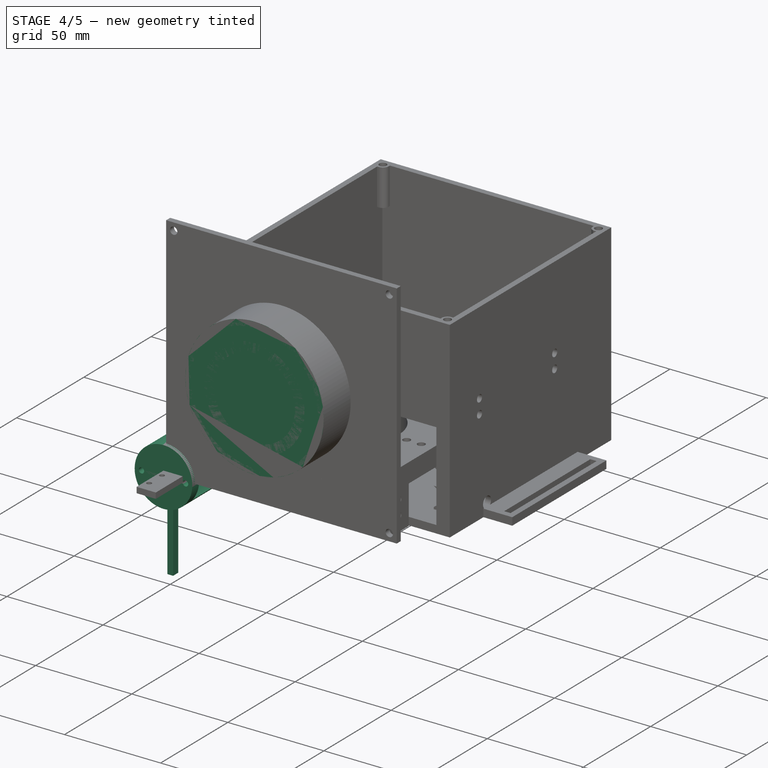
[diagram: stage 4 of 5 — iso view after this stage's code; geometry added in this stage tinted green]
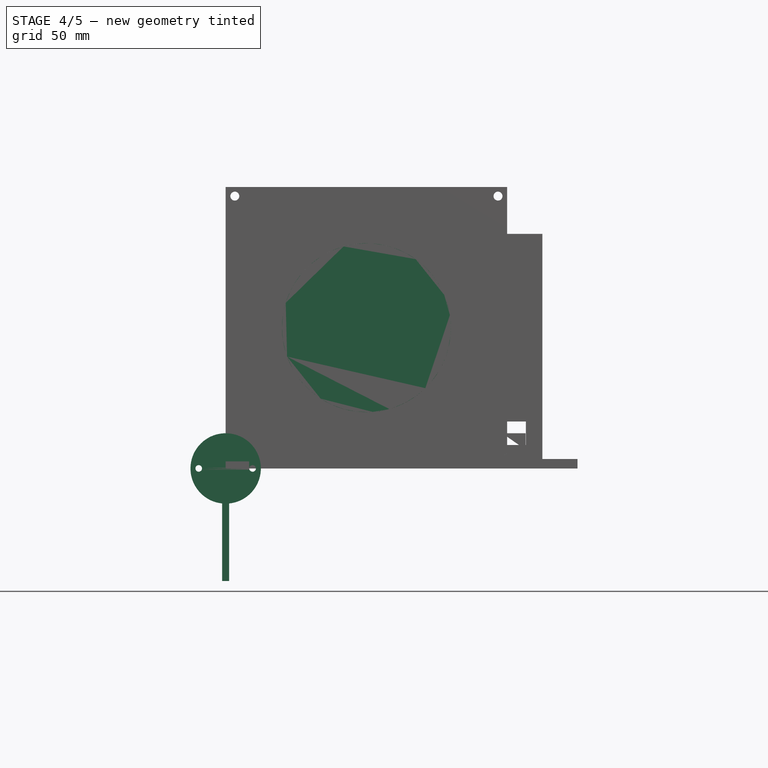
[diagram: stage 4 of 5 — front view after this stage's code; geometry added in this stage tinted green]
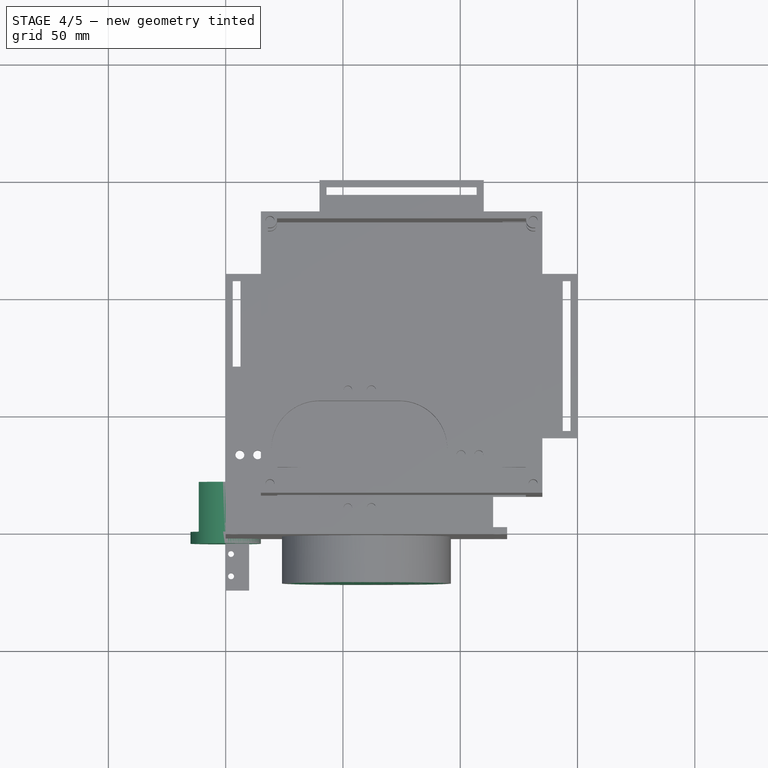
[diagram: stage 4 of 5 — top view after this stage's code; geometry added in this stage tinted green]
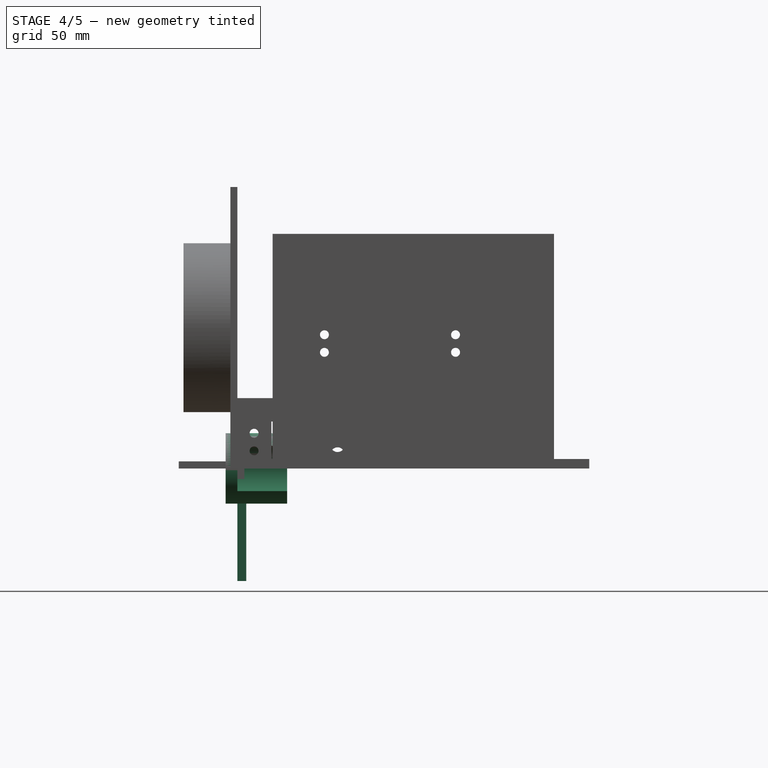
[diagram: stage 4 of 5 — right view after this stage's code; geometry added in this stage tinted green]
FEATURE [PartDesign::Body] Body  label="RotaryDisk"
  BaseFeature = -> Part__Feature
  Group = -> [BaseFeature,Sketch,Sketch067,Pocket043,Sketch068,Pocket044,Pad,Sketch070,Pad016,Sketch071,Pocket,Sketch072,Pocket045,Sketch073,Pocket046]
  Origin = -> Origin
  Placement = pos=(75.2,74.9,80) rot=(-0.707107,-0.707107,0;3.14159rad)
  Tip = -> Pocket046
FEATURE [Sketcher::SketchObject] Sketch054
  MapMode = 5
  Placement = pos=(0,0,0) rot=(1,0,0;1.5708rad)
  Support = -> [XZ_Plane027]
  sketch-geometry (4):
    g0: LineSegment StartX=0 StartY=0 StartZ=0 EndX=120 EndY=0 EndZ=0
    g1: LineSegment StartX=0 StartY=0 StartZ=0 EndX=0 EndY=120 EndZ=0
    g2: LineSegment StartX=0 StartY=120 StartZ=0 EndX=120 EndY=120 EndZ=0
    g3: LineSegment StartX=120 StartY=120 StartZ=0 EndX=120 EndY=0 EndZ=0
  constraints (11):
    c: Coincident(g0,g-1)
    c: PointOnObject(g0,g-1)
    c: Coincident(g1,g0)
    c: Vertical(g1)
    c: Coincident(g2,g1)
    c: Horizontal(g2)
    c: Coincident(g3,g2)
    c: Coincident(g3,g0)
    c: Vertical(g3)
    c: DistanceX(g0,g0) = 120
    c: DistanceY(g1,g1) = 120
FEATURE [PartDesign::Pad] Pad015
  Length = 3
  Length2 = 100
  Placement = pos=(0,0,0) rot=(1,0,0;1.5708rad)
  Profile = -> Sketch054
  Type = 0
FEATURE [Sketcher::SketchObject] Sketch065
  ExternalGeometry = -> [Pad015]
  MapMode = 5
  Placement = pos=(0,-3,-7e-16) rot=(1,0,0;1.5708rad)
  Support = -> [Pad015]
  sketch-geometry (4):
    g0: Circle CenterX=3.9 CenterY=3.9 CenterZ=0 NormalX=0 NormalY=0 NormalZ=1 AngleXU=0 Radius=1.9
    g1: Circle CenterX=116.1 CenterY=3.9 CenterZ=0 NormalX=0 NormalY=0 NormalZ=1 AngleXU=0 Radius=1.9
    g2: Circle CenterX=116.1 CenterY=116.1 CenterZ=0 NormalX=0 NormalY=0 NormalZ=1 AngleXU=0 Radius=1.9
    g3: Circle CenterX=3.9 CenterY=116.1 CenterZ=0 NormalX=0 NormalY=0 NormalZ=1 AngleXU=0 Radius=1.9
  constraints (12):
    c: Distance(g0,g-1) = 3.9
    c: Distance(g0,g-2) = 3.9
    c: Radius(g0) = 1.9
    c: Distance(g1,g-1) = 3.9
    c: Distance(g1,g-3) = 3.9
    c: Radius(g1) = 1.9
    c: Radius(g2) = 1.9
    c: Distance(g2,g-3) = 3.9
    c: Distance(g2,g-4) = 3.9
    c: Radius(g3) = 1.9
    c: Distance(g3,g-4) = 3.9
    c: Distance(g3,g-2) = 3.9
FEATURE [PartDesign::Pocket] Pocket034
  BaseFeature = -> Pad015
  Length = 5
  Length2 = 100
  Placement = pos=(0,0,0) rot=(1,0,0;1.5708rad)
  Profile = -> Sketch065
  Type = 1
FEATURE [Sketcher::SketchObject] Sketch064
  ExternalGeometry = -> [Pocket034]
  MapMode = 5
  Placement = pos=(0,-3,-7e-16) rot=(1,0,0;1.5708rad)
  Support = -> [Pocket034]
  sketch-geometry (3):
    g0: Circle CenterX=60 CenterY=60 CenterZ=0 NormalX=0 NormalY=0 NormalZ=1 AngleXU=0 Radius=20
    g1: LineSegment [constr] StartX=0 StartY=120 StartZ=0 EndX=120 EndY=0 EndZ=0
    g2: LineSegment [constr] StartX=0 StartY=0 StartZ=0 EndX=120 EndY=120 EndZ=0
  constraints (7):
    c: Radius(g0) = 20
    c: Coincident(g1,g-3)
    c: Coincident(g1,g-4)
    c: Coincident(g2,g-1)
    c: Coincident(g2,g-4)
    c: PointOnObject(g0,g1)
    c: PointOnObject(g0,g2)
FEATURE [PartDesign::Pocket] Pocket036
  BaseFeature = -> Pocket034
  Length = 5
  Length2 = 100
  Placement = pos=(0,0,0) rot=(1,0,0;1.5708rad)
  Profile = -> Sketch064
  Type = 1
FEATURE [Sketcher::SketchObject] Sketch058
  ExternalGeometry = -> [Pocket036]
  MapMode = 5
  Placement = pos=(0,-3,-7e-16) rot=(1,0,0;1.5708rad)
  Support = -> [Pocket036]
  sketch-geometry (1):
    g0: Circle CenterX=60 CenterY=60 CenterZ=0 NormalX=0 NormalY=0 NormalZ=1 AngleXU=0 Radius=36
  constraints (2):
    c: Coincident(g0,g-3)
    c: Radius(g0) = 36
FEATURE [PartDesign::Pad] Pad013
  BaseFeature = -> Pocket036
  Length = 20
  Length2 = 100
  Placement = pos=(0,0,0) rot=(1,0,0;1.5708rad)
  Profile = -> Sketch058
  Type = 0
FEATURE [PartDesign::Body] Body007  label="BaseRoof"
  Group = -> [Sketch054,Pad015,Sketch065,Pocket034,Sketch064,Pocket036,Sketch058,Pad013,Sketch055,Pocket035,Sketch057,Sketch056,Pocket037,Chamfer003,Chamfer002,Sketch066,Pocket042]
  Origin = -> Origin026
  Placement = pos=(-0.1,0.5,-0.2) rot=(0,0,1;0rad)
  Tip = -> Pocket042
FEATURE [Sketcher::SketchObject] Sketch076
  MapMode = 5
  Placement = pos=(0,0,0) rot=(1,0,0;1.5708rad)
  Support = -> [XZ_Plane001]
  sketch-geometry (1):
    g0: Circle CenterX=0 CenterY=0 CenterZ=0 NormalX=0 NormalY=0 NormalZ=1 AngleXU=0 Radius=15
  constraints (2):
    c: Coincident(g0,g-1)
    c: Radius(g0) = 15
FEATURE [PartDesign::Pad] Pad017
  Length = 5
  Length2 = 100
  Placement = pos=(0,0,0) rot=(1,0,0;1.5708rad)
  Profile = -> Sketch076
  Type = 0
FEATURE [Sketcher::SketchObject] Sketch075
  MapMode = 5
  Placement = pos=(0,0,0) rot=(-1,0,0;1.5708rad)
  Support = -> [Pad017]
  sketch-geometry (3):
    g0: Circle [constr] CenterX=0 CenterY=0 CenterZ=0 NormalX=0 NormalY=0 NormalZ=1 AngleXU=0 Radius=11.475
    g1: Circle CenterX=-11.475 CenterY=0 CenterZ=0 NormalX=0 NormalY=0 NormalZ=1 AngleXU=0 Radius=1.4
    g2: Circle CenterX=11.475 CenterY=0 CenterZ=0 NormalX=0 NormalY=0 NormalZ=1 AngleXU=0 Radius=1.4
  constraints (8):
    c: Coincident(g0,g-1)
    c: Radius(g0) = 11.475
    c: PointOnObject(g1,g0)
    c: PointOnObject(g1,g-1)
    c: Radius(g1) = 1.4
    c: PointOnObject(g2,g-1)
    c: PointOnObject(g2,g0)
    c: Radius(g2) = 1.4
FEATURE [PartDesign::Pocket] Pocket048
  BaseFeature = -> Pad017
  Length = 5
  Length2 = 100
  Placement = pos=(0,0,0) rot=(1,0,0;1.5708rad)
  Profile = -> Sketch075
  Type = 1
FEATURE [Sketcher::SketchObject] Sketch077
  ExternalGeometry = -> [Pocket048]
  MapMode = 5
  Placement = pos=(0,0,0) rot=(-1,0,0;1.5708rad)
  Support = -> [Pocket048]
  sketch-geometry (9):
    g0: ArcOfCircle CenterX=0 CenterY=0 CenterZ=0 NormalX=0 NormalY=0 NormalZ=1 AngleXU=0 Radius=15 StartAngle=0.699755 EndAngle=2.44184
    g1: GeomPoint X=-15 Y=0 Z=0
    g2: GeomPoint X=-7.95 Y=0 Z=0
    g3: LineSegment [constr] StartX=-11.475 StartY=-9.66045 StartZ=0 EndX=-11.475 EndY=9.66045 EndZ=0
    g4: ArcOfCircle CenterX=-22.95 CenterY=-2e-16 CenterZ=0 NormalX=0 NormalY=0 NormalZ=1 AngleXU=0 Radius=15 StartAngle=5.58343 EndAngle=6.98294
    g5: GeomPoint X=7.95 Y=0 Z=0
    g6: LineSegment [constr] StartX=11.475 StartY=9.66045 StartZ=0 EndX=11.475 EndY=-9.66045 EndZ=0
    g7: ArcOfCircle CenterX=22.95 CenterY=1.9e-15 CenterZ=0 NormalX=0 NormalY=0 NormalZ=1 AngleXU=0 Radius=15 StartAngle=2.44184 EndAngle=3.84135
    g8: ArcOfCircle CenterX=0 CenterY=0 CenterZ=0 NormalX=0 NormalY=0 NormalZ=1 AngleXU=0 Radius=15 StartAngle=3.84135 EndAngle=5.58343
  constraints (25):
    c: Coincident(g0,g-1)
    c: Radius(g0) = 15
    c: PointOnObject(g1,g0)
    c: PointOnObject(g1,g-1)
    c: Distance(g1,g-4) = 3.525
    c: PointOnObject(g2,g-1)
    c: Distance(g-4,g2) = 3.525
    c: Vertical(g3)
    c: PointOnObject(g-4,g3)
    c: PointOnObject(g4,g0)
    c: PointOnObject(g2,g4)
    c: PointOnObject(g5,g-1)
    c: Distance(g5,g-5) = 3.525
    c: Vertical(g6)
    c: PointOnObject(g-5,g6)
    c: Coincident(g7,g6)
    c: PointOnObject(g5,g7)
    c: Coincident(g0,g6)
    c: Coincident(g0,g3)
    c: Coincident(g8,g3)
    c: Coincident(g0,g8)
    c: Coincident(g4,g8)
    c: Coincident(g4,g0)
    c: Coincident(g8,g7)
    c: Coincident(g7,g0)
FEATURE [PartDesign::Pad] Pad018
  BaseFeature = -> Pocket048
  Length = 21.2
  Length2 = 100
  Placement = pos=(0,0,0) rot=(1,0,0;1.5708rad)
  Profile = -> Sketch077
  Type = 0
FEATURE [Sketcher::SketchObject] Sketch074
  MapMode = 5
  Placement = pos=(0,21.2,-9.3e-15) rot=(-1,0,0;1.5708rad)
  Support = -> [Pad018]
  sketch-geometry (1):
    g0: Circle CenterX=0 CenterY=0 CenterZ=0 NormalX=0 NormalY=0 NormalZ=1 AngleXU=0 Radius=4
  constraints (2):
    c: Coincident(g0,g-1)
    c: Radius(g0) = 4
FEATURE [PartDesign::Pocket] Pocket047
  BaseFeature = -> Pad018
  Length = 4
  Length2 = 100
  Placement = pos=(0,0,0) rot=(1,0,0;1.5708rad)
  Profile = -> Sketch074
  Type = 0
FEATURE [Sketcher::SketchObject] Sketch078
  ExternalGeometry = -> [Pocket047]
  MapMode = 5
  Placement = pos=(0,21.2,-9.3e-15) rot=(-1,0,0;1.5708rad)
  Support = -> [Pocket047]
  sketch-geometry (10):
    g0: LineSegment [constr] StartX=-7.95 StartY=9.66045 StartZ=0 EndX=7.95 EndY=9.66045 EndZ=0
    g1: LineSegment [constr] StartX=7.95 StartY=9.66045 StartZ=0 EndX=7.95 EndY=-9.66045 EndZ=0
    g2: LineSegment [constr] StartX=7.95 StartY=-9.66045 StartZ=0 EndX=-7.95 EndY=-9.66045 EndZ=0
    g3: LineSegment [constr] StartX=-7.95 StartY=-9.66045 StartZ=0 EndX=-7.95 EndY=9.66045 EndZ=0
    g4: LineSegment [constr] StartX=-11.475 StartY=9.66045 StartZ=0 EndX=11.475 EndY=9.66045 EndZ=0
    g5: LineSegment [constr] StartX=-11.475 StartY=-9.66045 StartZ=0 EndX=11.475 EndY=-9.66045 EndZ=0
    g6: Circle CenterX=-7.95 CenterY=9.66045 CenterZ=0 NormalX=0 NormalY=0 NormalZ=1 AngleXU=0 Radius=1.4
    g7: Circle CenterX=7.95 CenterY=9.66045 CenterZ=0 NormalX=0 NormalY=0 NormalZ=1 AngleXU=0 Radius=1.4
    g8: Circle CenterX=-7.95 CenterY=-9.66045 CenterZ=0 NormalX=0 NormalY=0 NormalZ=1 AngleXU=0 Radius=1.4
    g9: Circle CenterX=7.95 CenterY=-9.66045 CenterZ=0 NormalX=0 NormalY=0 NormalZ=1 AngleXU=0 Radius=1.4
  constraints (22):
    c: Coincident(g0,g1)
    c: Coincident(g1,g2)
    c: Coincident(g2,g3)
    c: Coincident(g3,g0)
    c: Vertical(g1)
    c: Vertical(g3)
    c: Tangent(g1,g-4)
    c: Tangent(g3,g-3)
    c: Coincident(g4,g-3)
    c: Coincident(g4,g-4)
    c: Tangent(g0,g4)
    c: Coincident(g5,g-3)
    c: Coincident(g5,g-4)
    c: Tangent(g5,g2)
    c: Coincident(g6,g0)
    c: Radius(g6) = 1.4
    c: Coincident(g7,g0)
    c: Radius(g7) = 1.4
    c: Coincident(g8,g2)
    c: Radius(g8) = 1.4
    c: Coincident(g9,g1)
    c: Radius(g9) = 1.4
FEATURE [PartDesign::Pocket] Pocket049
  BaseFeature = -> Pocket047
  Length = 8
  Length2 = 100
  Placement = pos=(0,0,0) rot=(1,0,0;1.5708rad)
  Profile = -> Sketch078
  Type = 0
FEATURE [PartDesign::Body] Body001  label="AxisTower"
  Group = -> [Sketch076,Pad017,Sketch075,Pocket048,Sketch077,Pad018,Sketch074,Pocket047,Sketch078,Pocket049]
  Origin = -> Origin001
  Placement = pos=(75.2,74.8,64.5) rot=(0.57735,-0.57735,0.57735;4.18879rad)
  Tip = -> Pocket049
FEATURE [Sketcher::SketchObject] CopySketch078
  Placement = pos=(0,0,0) rot=(-1,0,0;1.5708rad)
  sketch-geometry (9):
    g0: ArcOfCircle CenterX=0 CenterY=0 CenterZ=0 NormalX=0 NormalY=0 NormalZ=1 AngleXU=0 Radius=15 StartAngle=0.699755 EndAngle=2.44184
    g1: GeomPoint X=-15 Y=0 Z=0
    g2: GeomPoint X=-7.95 Y=0 Z=0
    g3: LineSegment [constr] StartX=-11.475 StartY=-9.66045 StartZ=0 EndX=-11.475 EndY=9.66045 EndZ=0
    g4: ArcOfCircle CenterX=-22.95 CenterY=-2e-16 CenterZ=0 NormalX=0 NormalY=0 NormalZ=1 AngleXU=0 Radius=15 StartAngle=5.58343 EndAngle=6.98294
    g5: GeomPoint X=7.95 Y=0 Z=0
    g6: LineSegment [constr] StartX=11.475 StartY=9.66045 StartZ=0 EndX=11.475 EndY=-9.66045 EndZ=0
    g7: ArcOfCircle CenterX=22.95 CenterY=1.9e-15 CenterZ=0 NormalX=0 NormalY=0 NormalZ=1 AngleXU=0 Radius=15 StartAngle=2.44184 EndAngle=3.84135
    g8: ArcOfCircle CenterX=0 CenterY=0 CenterZ=0 NormalX=0 NormalY=0 NormalZ=1 AngleXU=0 Radius=15 StartAngle=3.84135 EndAngle=5.58343
  constraints (20):
    c: Coincident(g0,g-1)
    c: Radius(g0) = 15
    c: PointOnObject(g1,g0)
    c: PointOnObject(g1,g-1)
    c: PointOnObject(g2,g-1)
    c: Vertical(g3)
    c: PointOnObject(g4,g0)
    c: PointOnObject(g2,g4)
    c: PointOnObject(g5,g-1)
    c: Vertical(g6)
    c: Coincident(g7,g6)
    c: PointOnObject(g5,g7)
    c: Coincident(g0,g6)
    c: Coincident(g0,g3)
    c: Coincident(g8,g3)
    c: Coincident(g0,g8)
    c: Coincident(g4,g8)
    c: Coincident(g4,g0)
    c: Coincident(g8,g7)
    c: Coincident(g7,g0)
FEATURE [PartDesign::Pad] Pad020
  Length = 3.8
  Length2 = 100
  Placement = pos=(0,0,0) rot=(-1,0,0;1.5708rad)
  Profile = -> CopySketch078
  Type = 0
FEATURE [Part::Part2DObjectPython] InvoluteGear002  # Draft 2D object (typed FeaturePython)
  ExternalGear = true
  HighPrecision = true
  MapMode = 5
  Modules = 0.257
  NumberOfTeeth = 25
  Placement = pos=(0,3.8,-8e-16) rot=(-1,0,0;1.5708rad)
  PressureAngle = 36
  Support = -> [Pad020]
FEATURE [PartDesign::Pocket] Pocket050
  BaseFeature = -> Pad020
  Length = 5
  Length2 = 100
  Placement = pos=(0,0,0) rot=(-1,0,0;1.5708rad)
  Profile = -> InvoluteGear002
  Type = 1
FEATURE [Sketcher::SketchObject] Sketch080
  ExternalGeometry = -> [Pocket050]
  MapMode = 5
  Placement = pos=(0,3.8,-8e-16) rot=(-1,0,0;1.5708rad)
  Support = -> [Pocket050]
  sketch-geometry (10):
    g0: LineSegment [constr] StartX=-11.475 StartY=9.66045 StartZ=0 EndX=11.475 EndY=9.66045 EndZ=0
    g1: LineSegment [constr] StartX=-11.475 StartY=-9.66045 StartZ=0 EndX=11.475 EndY=-9.66045 EndZ=0
    g2: LineSegment [constr] StartX=-7.95 StartY=9.66045 StartZ=0 EndX=7.95 EndY=9.66045 EndZ=0
    g3: LineSegment [constr] StartX=7.95 StartY=9.66045 StartZ=0 EndX=7.95 EndY=-9.66045 EndZ=0
    g4: LineSegment [constr] StartX=7.95 StartY=-9.66045 StartZ=0 EndX=-7.95 EndY=-9.66045 EndZ=0
    g5: LineSegment [constr] StartX=-7.95 StartY=-9.66045 StartZ=0 EndX=-7.95 EndY=9.66045 EndZ=0
    g6: Circle CenterX=-7.95 CenterY=9.66045 CenterZ=0 NormalX=0 NormalY=0 NormalZ=1 AngleXU=0 Radius=1.4
    g7: Circle CenterX=7.95 CenterY=9.66045 CenterZ=0 NormalX=0 NormalY=0 NormalZ=1 AngleXU=0 Radius=1.4
    g8: Circle CenterX=-7.95 CenterY=-9.66045 CenterZ=0 NormalX=0 NormalY=0 NormalZ=1 AngleXU=0 Radius=1.4
    g9: Circle CenterX=7.95 CenterY=-9.66045 CenterZ=0 NormalX=0 NormalY=0 NormalZ=1 AngleXU=0 Radius=1.4
  constraints (24):
    c: Coincident(g0,g-3)
    c: Coincident(g0,g-4)
    c: Coincident(g1,g-3)
    c: Coincident(g1,g-4)
    c: Coincident(g2,g3)
    c: Coincident(g3,g4)
    c: Coincident(g4,g5)
    c: Coincident(g5,g2)
    c: Horizontal(g2)
    c: Horizontal(g4)
    c: Vertical(g3)
    c: Vertical(g5)
    c: PointOnObject(g2,g0)
    c: PointOnObject(g3,g1)
    c: Tangent(g3,g-4)
    c: Tangent(g5,g-3)
    c: Coincident(g6,g2)
    c: Coincident(g7,g2)
    c: Coincident(g8,g4)
    c: Coincident(g9,g3)
    c: Radius(g8) = 1.4
    c: Radius(g9) = 1.4
    c: Radius(g6) = 1.4
    c: Radius(g7) = 1.4
FEATURE [PartDesign::Pocket] Pocket051
  BaseFeature = -> Pocket050
  Length = 5
  Length2 = 100
  Placement = pos=(0,0,0) rot=(-1,0,0;1.5708rad)
  Profile = -> Sketch080
  Type = 1
FEATURE [Sketcher::SketchObject] Sketch079
  ExternalGeometry = -> [Pocket051]
  MapMode = 5
  Placement = pos=(0,3.8,-8e-16) rot=(-1,0,0;1.5708rad)
  Support = -> [Pocket051]
  sketch-geometry (6):
    g0: LineSegment StartX=-1.5 StartY=48 StartZ=0 EndX=1.5 EndY=48 EndZ=0
    g1: LineSegment StartX=1.5 StartY=48 StartZ=0 EndX=1.5 EndY=14 EndZ=0
    g2: LineSegment StartX=1.5 StartY=14 StartZ=0 EndX=-1.5 EndY=14 EndZ=0
    g3: LineSegment StartX=-1.5 StartY=14 StartZ=0 EndX=-1.5 EndY=48 EndZ=0
    g4: GeomPoint X=0 Y=14 Z=0
    g5: GeomPoint X=0 Y=15 Z=0
  constraints (16):
    c: Coincident(g0,g1)
    c: Coincident(g1,g2)
    c: Coincident(g2,g3)
    c: Coincident(g3,g0)
    c: Horizontal(g0)
    c: Horizontal(g2)
    c: Vertical(g1)
    c: Vertical(g3)
    c: DistanceX(g0,g0) = 3
    c: PointOnObject(g4,g2)
    c: Distance(g4,g1) = 1.5
    c: PointOnObject(g4,g-2)
    c: DistanceY(g1,g0) = 34
    c: PointOnObject(g5,g-3)
    c: PointOnObject(g5,g-2)
    c: Distance(g4,g5) = 1
FEATURE [PartDesign::Pad] Pad019
  BaseFeature = -> Pocket051
  Length = 3.8
  Length2 = 100
  Placement = pos=(0,0,0) rot=(-1,0,0;1.5708rad)
  Profile = -> Sketch079
  Reversed = true
  Type = 0
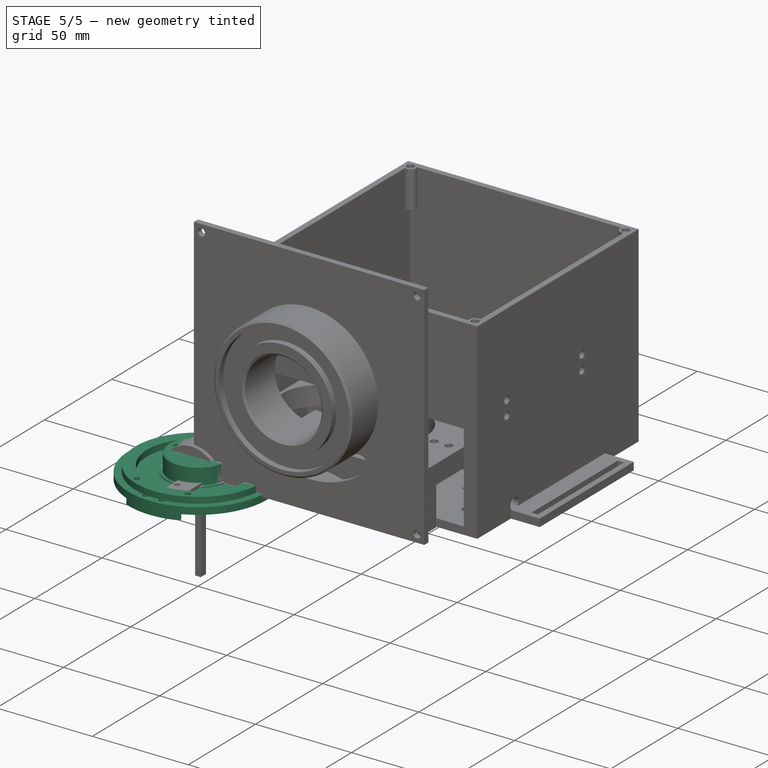
[diagram: stage 5 of 5 — iso view after this stage's code; geometry added in this stage tinted green]
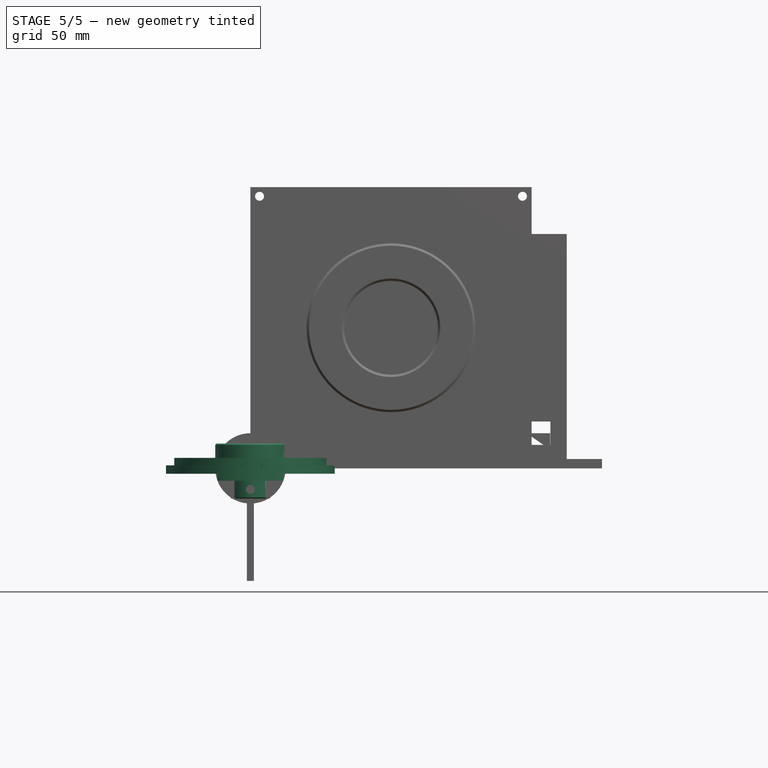
[diagram: stage 5 of 5 — front view after this stage's code; geometry added in this stage tinted green]
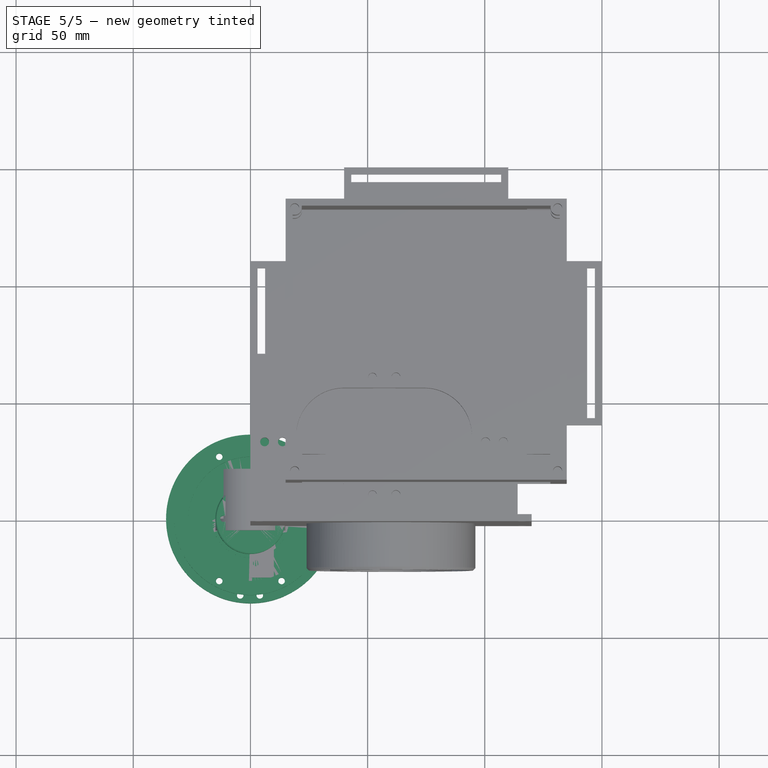
[diagram: stage 5 of 5 — top view after this stage's code; geometry added in this stage tinted green]
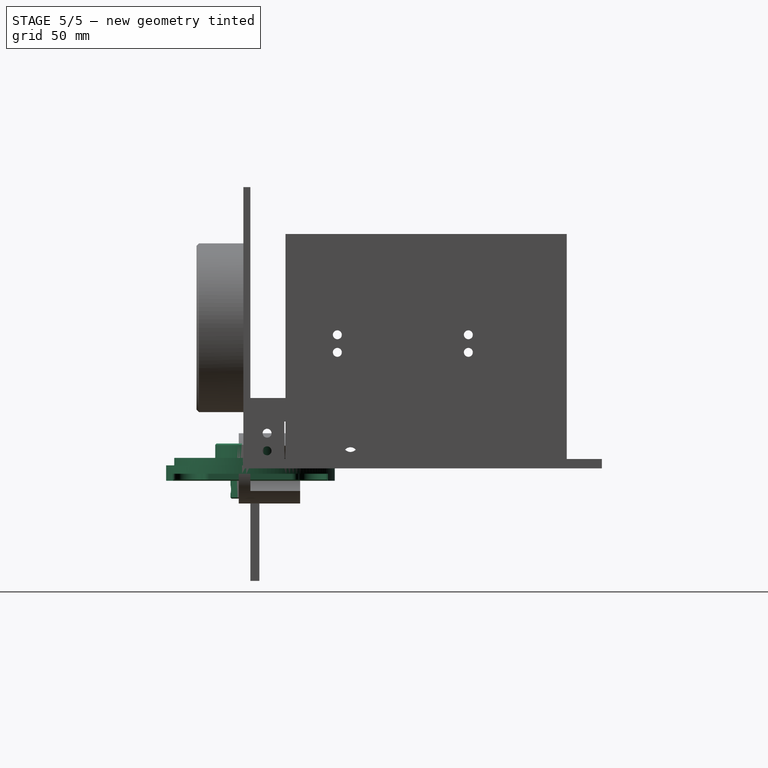
[diagram: stage 5 of 5 — right view after this stage's code; geometry added in this stage tinted green]
FEATURE [Part::Feature] Part__Feature  label="轴承支撑轴"
  Placement = pos=(85.1146,104.103,-119.904) rot=(0.57735,0.57735,-0.57735;2.0944rad)
  shape: bbox 72 x 23.5 x 72 mm, 84 faces (baked)
FEATURE [PartDesign::FeatureBase] BaseFeature
  BaseFeature = -> Part__Feature
FEATURE [Sketcher::SketchObject] Sketch067
  MapMode = 5
  Placement = pos=(0,0,0) rot=(1,0,0;1.5708rad)
  Support = -> [XZ_Plane]
  sketch-geometry (2):
    g0: GeomPoint X=0 Y=-9 Z=0
    g1: Circle CenterX=0 CenterY=-9 CenterZ=0 NormalX=0 NormalY=0 NormalZ=1 AngleXU=0 Radius=1.9
  constraints (3):
    c: PointOnObject(g0,g-2)
    c: Coincident(g1,g0)
    c: Radius(g1) = 1.9
FEATURE [PartDesign::Pocket] Pocket043
  BaseFeature = -> BaseFeature
  Length = 17
  Length2 = 100
  Midplane = true
  Profile = -> Sketch067
  Type = 1
FEATURE [Sketcher::SketchObject] Sketch068
  ExternalGeometry = -> [Pocket043]
  MapMode = 5
  Placement = pos=(0,0,0) rot=(0.57735,0.57735,0.57735;2.0944rad)
  Support = -> [YZ_Plane]
  sketch-geometry (1):
    g0: Circle CenterX=0 CenterY=-9 CenterZ=0 NormalX=0 NormalY=0 NormalZ=1 AngleXU=0 Radius=1.9
  constraints (3):
    c: PointOnObject(g0,g-2)
    c: Radius(g0) = 1.9
    c: DistanceY(g0,g-1) = 9
FEATURE [PartDesign::Pocket] Pocket044
  BaseFeature = -> Pocket043
  Length = 5
  Length2 = 100
  Midplane = true
  Profile = -> Sketch068
  Type = 1
FEATURE [Sketcher::SketchObject] Sketch
  ExternalGeometry = -> [BaseFeature]
  MapMode = 5
  Placement = pos=(0,0,-2.3) rot=(1,0,0;3.14159rad)
  Support = -> [BaseFeature]
  sketch-geometry (8):
    g0: Circle CenterX=13.3 CenterY=26.5 CenterZ=0 NormalX=0 NormalY=0 NormalZ=1 AngleXU=0 Radius=1.4
    g1: Circle CenterX=-13.3 CenterY=26.5 CenterZ=0 NormalX=0 NormalY=0 NormalZ=1 AngleXU=0 Radius=1.4
    g2: Circle CenterX=-13.3 CenterY=-26.5 CenterZ=0 NormalX=0 NormalY=0 NormalZ=1 AngleXU=0 Radius=1.4
    g3: Circle CenterX=13.3 CenterY=-26.5 CenterZ=0 NormalX=0 NormalY=0 NormalZ=1 AngleXU=0 Radius=1.4
    g4: Circle CenterX=-13.3 CenterY=26.5 CenterZ=0 NormalX=0 NormalY=0 NormalZ=1 AngleXU=0 Radius=1.65
    g5: Circle CenterX=13.3 CenterY=26.5 CenterZ=0 NormalX=0 NormalY=0 NormalZ=1 AngleXU=0 Radius=1.65
    g6: Circle CenterX=13.3 CenterY=-26.5 CenterZ=0 NormalX=0 NormalY=0 NormalZ=1 AngleXU=0 Radius=1.65
    g7: Circle CenterX=-13.3 CenterY=-26.5 CenterZ=0 NormalX=0 NormalY=0 NormalZ=1 AngleXU=0 Radius=1.65
  constraints (16):
    c: Radius(g0) = 1.4
    c: Coincident(g1,g-8)
    c: Coincident(g2,g-4)
    c: Coincident(g3,g-6)
    c: Radius(g2) = 1.4
    c: Radius(g3) = 1.4
    c: Radius(g1) = 1.4
    c: Coincident(g0,g-10)
    c: Coincident(g4,g1)
    c: PointOnObject(g-8,g4)
    c: Coincident(g5,g0)
    c: PointOnObject(g-10,g5)
    c: Coincident(g6,g3)
    c: PointOnObject(g-6,g6)
    c: Coincident(g7,g2)
    c: PointOnObject(g-4,g7)
FEATURE [PartDesign::Pad] Pad
  BaseFeature = -> Pocket044
  Length = 3.6
  Length2 = 100
  Profile = -> Sketch
  Reversed = true
  Type = 0
FEATURE [Sketcher::SketchObject] Sketch070
  MapMode = 5
  Placement = pos=(0,0,1.3) rot=(0,0,1;0rad)
  Support = -> [Pad]
  sketch-geometry (2):
    g0: Circle CenterX=0 CenterY=0 CenterZ=0 NormalX=0 NormalY=0 NormalZ=1 AngleXU=0 Radius=26.5
    g1: Circle CenterX=0 CenterY=0 CenterZ=0 NormalX=0 NormalY=0 NormalZ=1 AngleXU=0 Radius=32.5
  constraints (4):
    c: Coincident(g0,g-1)
    c: Radius(g0) = 26.5
    c: Coincident(g1,g0)
    c: Radius(g1) = 32.5
FEATURE [PartDesign::Pad] Pad016
  BaseFeature = -> Pad
  Length = 3.2
  Length2 = 100
  Profile = -> Sketch070
  Type = 0
FEATURE [Sketcher::SketchObject] Sketch071
  ExternalGeometry = -> [Pad016]
  MapMode = 5
  Placement = pos=(0,0,1.3) rot=(1,0,0;3.14159rad)
  Support = -> [Pad016]
  sketch-geometry (4):
    g0: Circle CenterX=-13.3 CenterY=-26.5 CenterZ=0 NormalX=0 NormalY=0 NormalZ=1 AngleXU=0 Radius=1.4
    g1: Circle CenterX=13.3 CenterY=-26.5 CenterZ=0 NormalX=0 NormalY=0 NormalZ=1 AngleXU=0 Radius=1.4
    g2: Circle CenterX=13.3 CenterY=26.5 CenterZ=0 NormalX=0 NormalY=0 NormalZ=1 AngleXU=0 Radius=1.4
    g3: Circle CenterX=-13.3 CenterY=26.5 CenterZ=0 NormalX=0 NormalY=0 NormalZ=1 AngleXU=0 Radius=1.4
  constraints (8):
    c: Coincident(g0,g-6)
    c: Radius(g0) = 1.4
    c: Coincident(g1,g-5)
    c: Radius(g1) = 1.4
    c: Coincident(g2,g-4)
    c: Radius(g2) = 1.4
    c: Coincident(g3,g-3)
    c: Radius(g3) = 1.4
FEATURE [PartDesign::Pocket] Pocket
  BaseFeature = -> Pad016
  Length = 5
  Length2 = 100
  Profile = -> Sketch071
  Type = 1
FEATURE [Sketcher::SketchObject] Sketch072
  ExternalGeometry = -> [Pocket]
  MapMode = 5
  Placement = pos=(0,0,10.6) rot=(0,0,1;0rad)
  Support = -> [Pocket]
  sketch-geometry (3):
    g0: Circle [constr] CenterX=0 CenterY=0 CenterZ=0 NormalX=0 NormalY=0 NormalZ=1 AngleXU=0 Radius=11.475
    g1: Circle CenterX=-11.475 CenterY=0 CenterZ=0 NormalX=0 NormalY=0 NormalZ=1 AngleXU=0 Radius=1.4
    g2: Circle CenterX=11.475 CenterY=0 CenterZ=0 NormalX=0 NormalY=0 NormalZ=1 AngleXU=0 Radius=1.4
  constraints (10):
    c: Distance(g-1,g-6) = 3.525
    c: Distance(g-1,g-4) = 15
    c: Coincident(g0,g-1)
    c: Radius(g0) = 11.475
    c: PointOnObject(g1,g-1)
    c: PointOnObject(g1,g0)
    c: Radius(g1) = 1.4
    c: PointOnObject(g2,g-1)
    c: PointOnObject(g2,g0)
    c: Radius(g2) = 1.4
FEATURE [PartDesign::Pocket] Pocket045
  BaseFeature = -> Pocket
  Length = 6
  Length2 = 100
  Profile = -> Sketch072
  Type = 0
FEATURE [Sketcher::SketchObject] Sketch073
  ExternalGeometry = -> [Pocket045]
  MapMode = 5
  Placement = pos=(0,0,-5.3) rot=(1,0,0;3.14159rad)
  Support = -> [Pocket045]
  sketch-geometry (2):
    g0: Circle CenterX=-4.35 CenterY=32.6 CenterZ=0 NormalX=0 NormalY=0 NormalZ=1 AngleXU=0 Radius=1.4
    g1: Circle CenterX=4 CenterY=32.6 CenterZ=0 NormalX=0 NormalY=0 NormalZ=1 AngleXU=0 Radius=1.4
  constraints (4):
    c: Coincident(g0,g-4)
    c: Coincident(g1,g-6)
    c: Radius(g0) = 1.4
    c: Radius(g1) = 1.4
FEATURE [PartDesign::Pocket] Pocket046
  BaseFeature = -> Pocket045
  Length = 6.8
  Length2 = 100
  Profile = -> Sketch073
  Type = 0
FEATURE [Sketcher::SketchObject] Sketch055
  ExternalGeometry = -> [Pad013]
  MapMode = 5
  Placement = pos=(0,-3,-7e-16) rot=(-1,0,0;1.5708rad)
  Support = -> [Pad013]
  sketch-geometry (1):
    g0: Circle CenterX=60 CenterY=-60 CenterZ=0 NormalX=0 NormalY=0 NormalZ=1 AngleXU=0 Radius=20
  constraints (2):
    c: Coincident(g0,g-3)
    c: Radius(g0) = 20
FEATURE [PartDesign::Pocket] Pocket035
  BaseFeature = -> Pad013
  Length = 5
  Length2 = 100
  Placement = pos=(0,0,0) rot=(1,0,0;1.5708rad)
  Profile = -> Sketch055
  Type = 1
FEATURE [Sketcher::SketchObject] Sketch057
  MapMode = 5
  Placement = pos=(0,-23,-5.3e-15) rot=(1,0,0;1.5708rad)
  Support = -> [Pocket035]
FEATURE [Sketcher::SketchObject] Sketch056
  ExternalGeometry = -> [Pocket035]
  MapMode = 5
  Placement = pos=(0,-23,-5.3e-15) rot=(1,0,0;1.5708rad)
  Support = -> [Pocket035]
  sketch-geometry (2):
    g0: Circle CenterX=60 CenterY=60 CenterZ=0 NormalX=0 NormalY=0 NormalZ=1 AngleXU=0 Radius=33
    g1: Circle CenterX=60 CenterY=60 CenterZ=0 NormalX=0 NormalY=0 NormalZ=1 AngleXU=0 Radius=26
  constraints (4):
    c: Coincident(g0,g-4)
    c: Radius(g0) = 33
    c: Coincident(g1,g0)
    c: Radius(g1) = 26
FEATURE [PartDesign::Pocket] Pocket037
  BaseFeature = -> Pocket035
  Length = 3.2
  Length2 = 100
  Placement = pos=(0,0,0) rot=(1,0,0;1.5708rad)
  Profile = -> Sketch056
  Type = 0
FEATURE [PartDesign::Chamfer] Chamfer003
  Base = -> Pocket037 [Edge32]
  BaseFeature = -> Pocket037
  Placement = pos=(0,0,0) rot=(1,0,0;1.5708rad)
  Size = 1
FEATURE [PartDesign::Chamfer] Chamfer002
  Base = -> Chamfer003 [Edge40]
  BaseFeature = -> Chamfer003
  Placement = pos=(0,0,0) rot=(1,0,0;1.5708rad)
  Size = 1
FEATURE [Sketcher::SketchObject] Sketch066
  ExternalGeometry = -> [Chamfer002]
  MapMode = 5
  Placement = pos=(0,-3,-7e-16) rot=(1,0,0;1.5708rad)
  Support = -> [Chamfer002]
  sketch-geometry (13):
    g0: LineSegment [constr] StartX=60 StartY=60 StartZ=0 EndX=36.8596 EndY=32.4224 EndZ=0
    g1: LineSegment [constr] StartX=60 StartY=60 StartZ=0 EndX=83.1404 EndY=32.4224 EndZ=0
    g2: LineSegment [constr] StartX=60 StartY=60 StartZ=0 EndX=60 EndY=15 EndZ=0
    g3: ArcOfCircle CenterX=60 CenterY=60 CenterZ=0 NormalX=0 NormalY=0 NormalZ=1 AngleXU=0 Radius=36 StartAngle=4.01426 EndAngle=5.41052
    g4: GeomPoint X=60 Y=24 Z=0
    g5: Circle [constr] CenterX=60 CenterY=60 CenterZ=0 NormalX=0 NormalY=0 NormalZ=1 AngleXU=0 Radius=45
    g6: LineSegment [constr] StartX=60 StartY=60 StartZ=0 EndX=31.0746 EndY=25.528 EndZ=0
    g7: LineSegment [constr] StartX=60 StartY=60 StartZ=0 EndX=88.9255 EndY=25.528 EndZ=0
    g8: ArcOfCircle CenterX=60 CenterY=60 CenterZ=0 NormalX=0 NormalY=0 NormalZ=1 AngleXU=0 Radius=45 StartAngle=4.01426 EndAngle=5.41052
    g9: GeomPoint X=33.9671 Y=28.9752 Z=0
    g10: ArcOfCircle CenterX=33.9671 CenterY=28.9752 CenterZ=0 NormalX=0 NormalY=0 NormalZ=1 AngleXU=0 Radius=4.5 StartAngle=0.872668 EndAngle=4.01426
    g11: GeomPoint X=86.0329 Y=28.9752 Z=0
    g12: ArcOfCircle CenterX=86.0329 CenterY=28.9752 CenterZ=0 NormalX=0 NormalY=0 NormalZ=1 AngleXU=0 Radius=4.5 StartAngle=5.41052 EndAngle=8.55212
  constraints (31):
    c: Coincident(g0,g-3)
    c: PointOnObject(g0,g-3)
    c: Coincident(g1,g0)
    c: Angle(g0,g1) = 1.39626
    c: Vertical(g2)
    c: Angle(g2,g1) = 0.698132
    c: Coincident(g3,g0)
    c: Coincident(g3,g0)
    c: Coincident(g3,g1)
    c: Coincident(g2,g3)
    c: PointOnObject(g4,g2)
    c: PointOnObject(g4,g3)
    c: Coincident(g5,g3)
    c: Radius(g5) = 45
    c: Coincident(g6,g3)
    c: PointOnObject(g6,g5)
    c: Coincident(g7,g3)
    c: Angle(g6,g7) = 1.39626
    c: Coincident(g8,g3)
    c: Coincident(g8,g6)
    c: Coincident(g8,g7)
    c: PointOnObject(g9,g6)
    c: Distance(g9,g3) = 4.5
    c: Coincident(g10,g9)
    c: Coincident(g10,g8)
    c: Coincident(g10,g3)
    c: PointOnObject(g11,g7)
    c: Coincident(g12,g11)
    c: Coincident(g12,g8)
    c: Coincident(g12,g3)
    c: PointOnObject(g2,g8)
FEATURE [PartDesign::Pocket] Pocket042
  BaseFeature = -> Chamfer002
  Length = 5
  Length2 = 100
  Placement = pos=(0,0,0) rot=(1,0,0;1.5708rad)
  Profile = -> Sketch066
  Type = 1
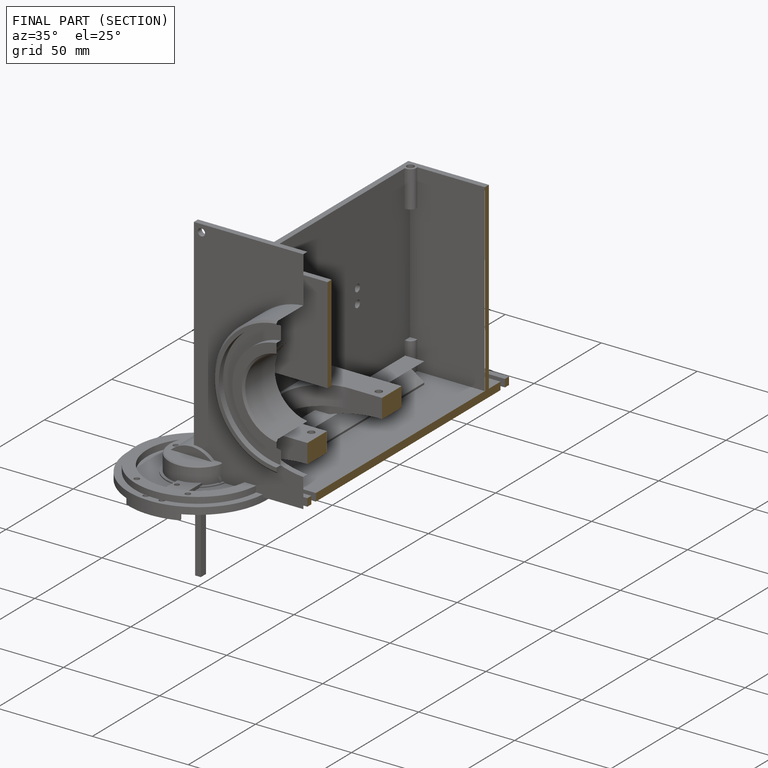
[diagram: finished part — half-section view (interior)]
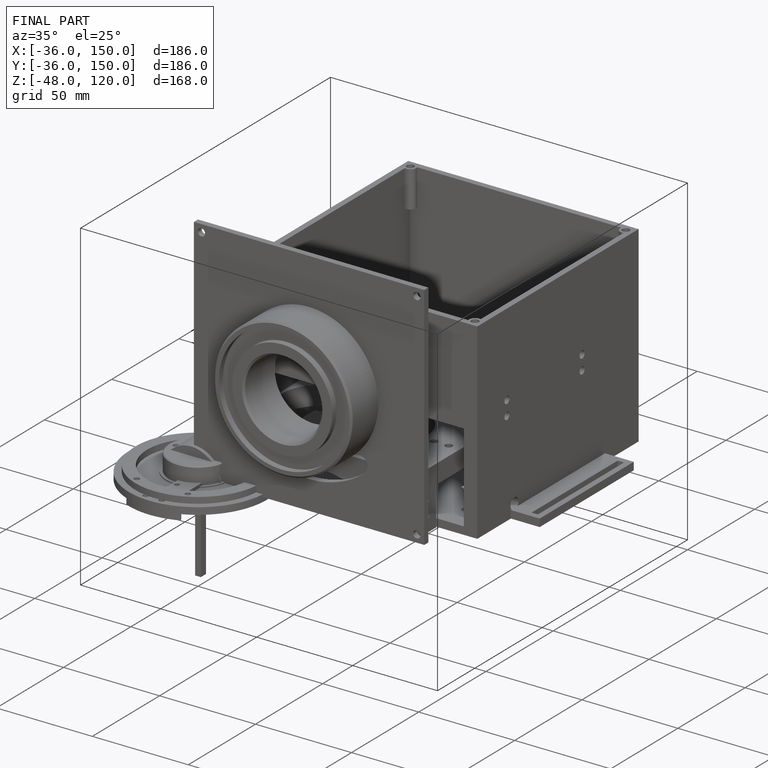
[diagram: finished part — iso view with bounding-box wireframe]
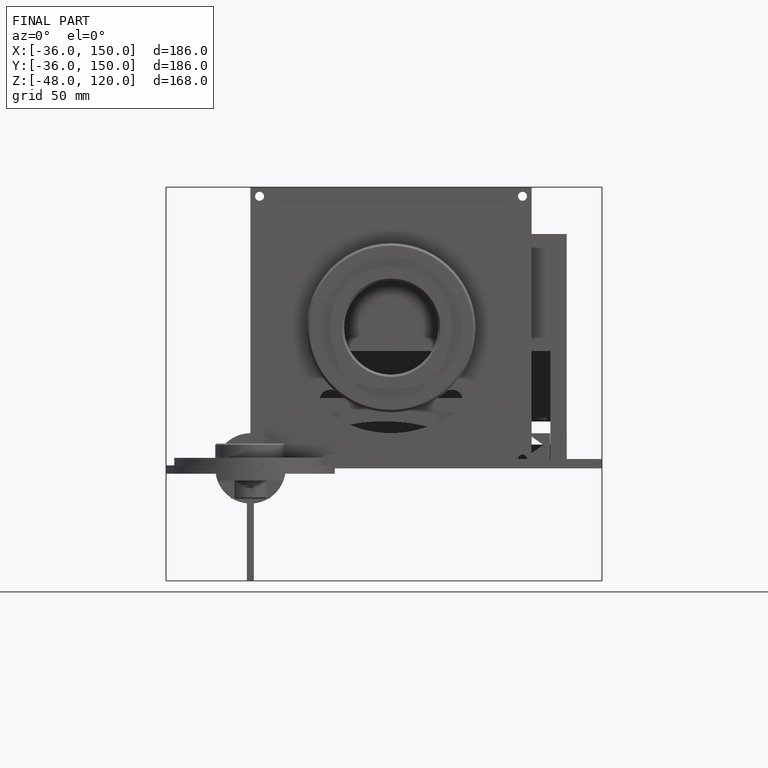
[diagram: finished part — front view with bounding-box wireframe]
